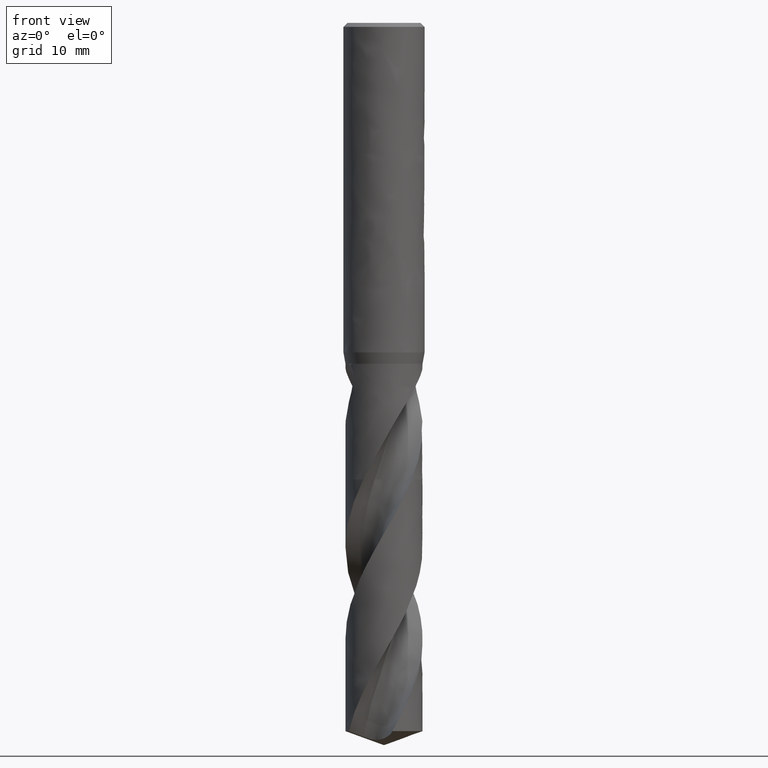
[diagram: clean part render]
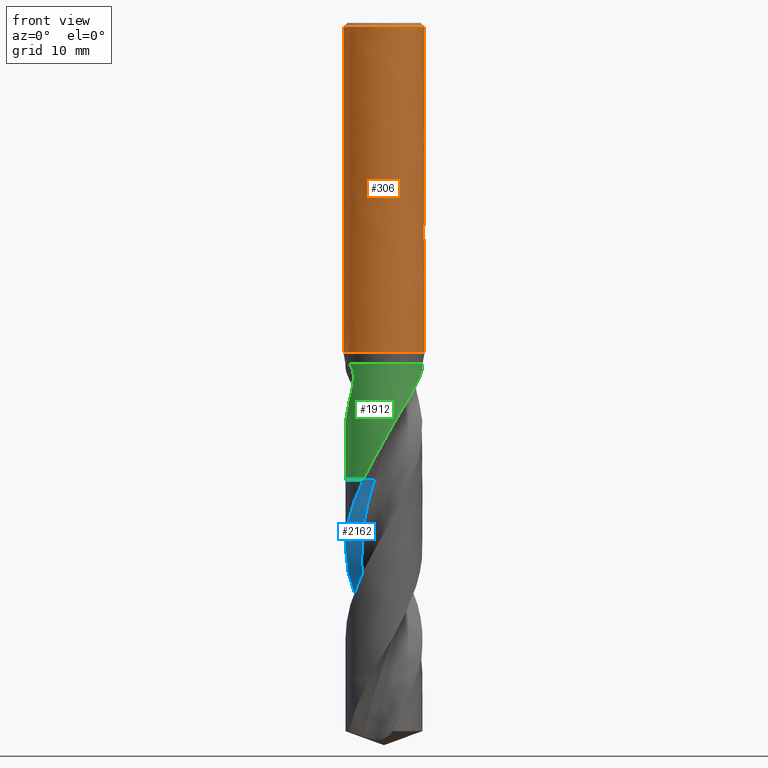
[diagram: same view with three faces highlighted in distinct colors, each labeled with its STEP entity id]
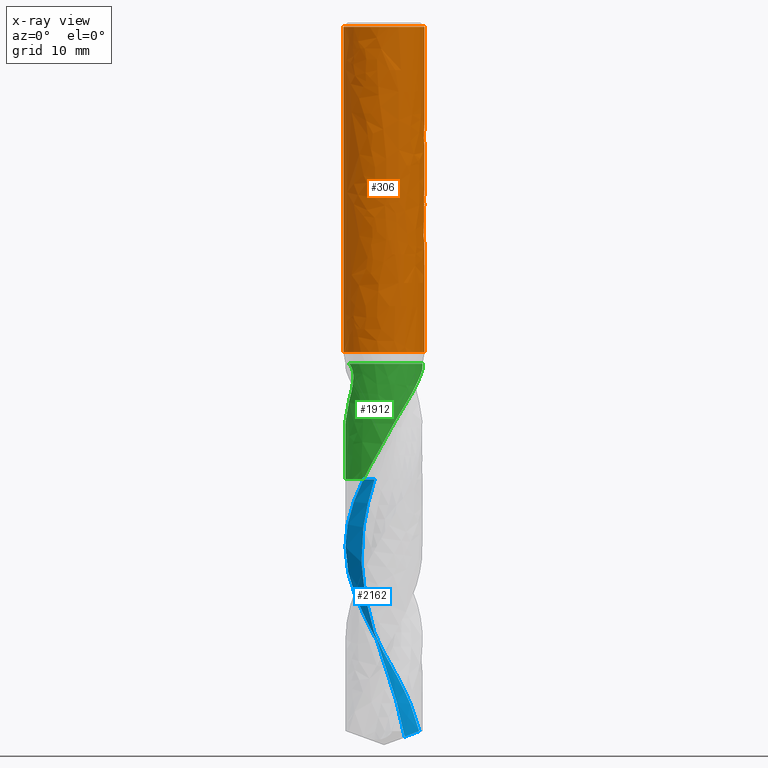
[diagram: x-ray of the same camera — body ghosted, the three highlighted faces saturated]
A machine part, front view with three faces highlighted in distinct colors.
The next image is the same camera in x-ray (body ghosted, the three faces saturated) — at least one of them is partly hidden behind the body in this view.
Their STEP definitions:

[orange] entity #306 — the highlighted face is a freeform B-spline surface patch.
#198 = VERTEX_POINT('', #199);
#199 = CARTESIAN_POINT('', (-5., 2.79268456077562E-15, -40.608));
#205 = EDGE_CURVE('', #198, #198, #206, .T.);
#206 = CIRCLE('', #207, 5.);
#207 = AXIS2_PLACEMENT_3D('', #208, #209, #210);
#208 = CARTESIAN_POINT('', (1.52255613135832E-31, 2.48652286098879E-15, -40.608));
#209 = DIRECTION('', (3.74939945665464E-33, 6.12323399573677E-17, -1.));
#210 = DIRECTION('', (-1., 6.12323399573677E-17, 0.));
#255 = VERTEX_POINT('', #256);
#256 = CARTESIAN_POINT('', (-5., 3.36777869765522E-16, -0.5));
#272 = EDGE_CURVE('', #255, #255, #273, .T.);
#273 = CIRCLE('', #274, 5.);
#274 = AXIS2_PLACEMENT_3D('', #275, #276, #277);
#275 = CARTESIAN_POINT('', (1.8746997283273E-33, 3.06161699786838E-17, -0.5));
#276 = DIRECTION('', (3.74939945665464E-33, 6.12323399573677E-17, -1.));
#277 = DIRECTION('', (-1., 6.12323399573677E-17, 0.));
#306 = ADVANCED_FACE('', (#307, #318), #504, .T.);
#307 = FACE_OUTER_BOUND('', #308, .T.);
#308 = EDGE_LOOP('', (#309, #315, #316, #317));
#309 = ORIENTED_EDGE('', *, *, #310, .T.);
#310 = EDGE_CURVE('', #198, #255, #311, .T.);
#311 = LINE('', #312, #313);
#312 = CARTESIAN_POINT('', (-5., 2.79268456077562E-15, -40.608));
#313 = VECTOR('', #314, 40.108);
#314 = DIRECTION('', (0., -2.4559066910101E-15, 40.108));
#315 = ORIENTED_EDGE('', *, *, #272, .T.);
#316 = ORIENTED_EDGE('', *, *, #310, .F.);
#317 = ORIENTED_EDGE('', *, *, #205, .F.);
#318 = FACE_BOUND('', #319, .T.);
#319 = EDGE_LOOP('', (#320, #330, #417, #425));
#320 = ORIENTED_EDGE('', *, *, #321, .F.);
#321 = EDGE_CURVE('', #322, #324, #326, .T.);
#322 = VERTEX_POINT('', #323);
#323 = CARTESIAN_POINT('', (3.57071421427142, 3.5, -16.5));
#324 = VERTEX_POINT('', #325);
#325 = CARTESIAN_POINT('', (3.57071421427142, 3.5, -23.5));
#326 = LINE('', #327, #328);
#327 = CARTESIAN_POINT('', (3.57071421427142, 3.5, -16.5));
#328 = VECTOR('', #329, 7.);
#329 = DIRECTION('', (-4.44089209850063E-16, 4.44089209850063E-16, -7.));
#330 = ORIENTED_EDGE('', *, *, #331, .F.);
#331 = EDGE_CURVE('', #332, #322, #334, .T.);
#332 = VERTEX_POINT('', #333);
#333 = CARTESIAN_POINT('', (-3.57071421427143, 3.5, -16.5));
#334 = B_SPLINE_CURVE_WITH_KNOTS('', 3, (#335, #336, #337, #338, #339, #340, #341, #342, #343, #344, #345, #346, #347, #348, #349, #350, #351, #352, #353, #354, #355, #356, #357, #358, #359, #360, #361, #362, #363, #364, #365, #366, #367, #368, #369, #370, #371, #372, #373, #374, #375, #376, #377, #378, #379, #380, #381, #382, #383, #384, #385, #386, #387, #388, #389, #390, #391, #392, #393, #394, #395, #396, #397, #398, #399, #400, #401, #402, #403, #404, #405, #406, #407, #408, #409, #410, #411, #412, #413, #414, #415, #416), .UNSPECIFIED., .F., .U., (4, 3, 3, 3, 3, 3, 3, 3, 3, 3, 3, 3, 3, 3, 3, 3, 3, 3, 3, 3, 3, 3, 3, 3, 3, 3, 3, 4), (0., 0.034113884401858, 0.477744785271101, 0.921646138215233, 1.36587692968725, 1.66193288302491, 1.95811394690938, 2.25443514488298, 2.55091138328179, 2.84755630975293, 3.14438084834245, 3.44139155508659, 3.73858907509582, 4.03596708411748, 4.33180862682757, 4.62765016953767, 4.92502817855933, 5.22222569856856, 5.5192364053127, 5.81606094390222, 6.11270587037336, 6.40918210877218, 6.70550330674577, 7.00168437063024, 7.2977403239679, 7.74197111543991, 8.18587246838405, 8.66361725365514), .UNSPECIFIED.);
#335 = CARTESIAN_POINT('', (-3.57071421427143, 3.5, -16.5));
#336 = CARTESIAN_POINT('', (-3.56427504914016, 3.50656926241779, -16.4933150699973));
#337 = CARTESIAN_POINT('', (-3.55781171392695, 3.51312691832153, -16.4866419508691));
#338 = CARTESIAN_POINT('', (-3.55132420209363, 3.51967277053197, -16.4799808432664));
#339 = CARTESIAN_POINT('', (-3.46695794567111, 3.60479770907222, -16.3933570764815));
#340 = CARTESIAN_POINT('', (-3.37844247985146, 3.68798545467209, -16.3087046115544));
#341 = CARTESIAN_POINT('', (-3.28578814351442, 3.7687658823467, -16.2265018511453));
#342 = CARTESIAN_POINT('', (-3.19307732202845, 3.84959555644267, -16.1442489772137));
#343 = CARTESIAN_POINT('', (-3.09609712074417, 3.92812245563972, -16.0643394240436));
#344 = CARTESIAN_POINT('', (-2.9949239430808, 4.00380201498053, -15.9873273449615));
#345 = CARTESIAN_POINT('', (-2.89367568039574, 4.07953773941852, -15.9102581118613));
#346 = CARTESIAN_POINT('', (-2.78806685747399, 4.15253987393854, -15.835970600071));
#347 = CARTESIAN_POINT('', (-2.67827641976913, 4.22218372638008, -15.7651005009515));
#348 = CARTESIAN_POINT('', (-2.60510699224168, 4.26859761196501, -15.7178693878437));
#349 = CARTESIAN_POINT('', (-2.53000964820203, 4.31356544734041, -15.6721097861197));
#350 = CARTESIAN_POINT('', (-2.45307301645999, 4.35688337873714, -15.6280291388821));
#351 = CARTESIAN_POINT('', (-2.37610387199879, 4.40021961589676, -15.5839298635649));
#352 = CARTESIAN_POINT('', (-2.29722271975626, 4.441944015062, -15.5414708065071));
#353 = CARTESIAN_POINT('', (-2.2165553058254, 4.48183919571167, -15.500873175734));
#354 = CARTESIAN_POINT('', (-2.13584972519196, 4.52175325222979, -15.4602563367377));
#355 = CARTESIAN_POINT('', (-2.05327275837509, 4.55987689392243, -15.4214614371042));
#356 = CARTESIAN_POINT('', (-1.96899537705871, 4.59598272463263, -15.3847198768441));
#357 = CARTESIAN_POINT('', (-1.88467390034474, 4.63210744654394, -15.3479590927581));
#358 = CARTESIAN_POINT('', (-1.79855309962361, 4.6662530102042, -15.3132123147402));
#359 = CARTESIAN_POINT('', (-1.71085713788038, 4.69818772014953, -15.2807153178074));
#360 = CARTESIAN_POINT('', (-1.62311127917806, 4.7301406002008, -15.2481998308405));
#361 = CARTESIAN_POINT('', (-1.5336765186139, 4.75991992907671, -15.2178961656186));
#362 = CARTESIAN_POINT('', (-1.44283688724849, 4.78729795571522, -15.1900360833063));
#363 = CARTESIAN_POINT('', (-1.35194225444139, 4.81469255915962, -15.1621591323137));
#364 = CARTESIAN_POINT('', (-1.25951372693075, 4.83972032116018, -15.1366906966724));
#365 = CARTESIAN_POINT('', (-1.16589904343752, 4.86216818101879, -15.1138475885239));
#366 = CARTESIAN_POINT('', (-1.07222564487661, 4.88463012016027, -15.090990153193));
#367 = CARTESIAN_POINT('', (-0.977222202676107, 4.90454207535022, -15.0707276003832));
#368 = CARTESIAN_POINT('', (-0.88129942868599, 4.92171832970943, -15.0532489169637));
#369 = CARTESIAN_POINT('', (-0.785316321360414, 4.9389053875585, -15.0357592398331));
#370 = CARTESIAN_POINT('', (-0.688256648043104, 4.9533803669116, -15.0210293938302));
#371 = CARTESIAN_POINT('', (-0.590587307962139, 4.96499815021859, -15.0092070516471));
#372 = CARTESIAN_POINT('', (-0.492858652975936, 4.97662298904286, -14.9973775297174));
#373 = CARTESIAN_POINT('', (-0.3943524604973, 4.98540636972409, -14.9884394966009));
#374 = CARTESIAN_POINT('', (-0.295578376007081, 4.9912556960786, -14.9824871788586));
#375 = CARTESIAN_POINT('', (-0.19731462869268, 4.9970748006527, -14.9765656150235));
#376 = CARTESIAN_POINT('', (-0.098613847570033, 5., -14.9735889105418));
#377 = CARTESIAN_POINT('', (1.53080849893419E-16, 5., -14.9735889105418));
#378 = CARTESIAN_POINT('', (0.0986138475700336, 5., -14.9735889105418));
#379 = CARTESIAN_POINT('', (0.197314628692682, 4.9970748006527, -14.9765656150235));
#380 = CARTESIAN_POINT('', (0.295578376007083, 4.9912556960786, -14.9824871788586));
#381 = CARTESIAN_POINT('', (0.394352460497301, 4.98540636972409, -14.9884394966009));
#382 = CARTESIAN_POINT('', (0.492858652975937, 4.97662298904286, -14.9973775297174));
#383 = CARTESIAN_POINT('', (0.590587307962141, 4.96499815021859, -15.0092070516471));
#384 = CARTESIAN_POINT('', (0.688256648043105, 4.9533803669116, -15.0210293938302));
#385 = CARTESIAN_POINT('', (0.785316321360415, 4.9389053875585, -15.0357592398331));
#386 = CARTESIAN_POINT('', (0.881299428685991, 4.92171832970943, -15.0532489169637));
#387 = CARTESIAN_POINT('', (0.977222202676109, 4.90454207535022, -15.0707276003832));
#388 = CARTESIAN_POINT('', (1.07222564487661, 4.88463012016027, -15.090990153193));
#389 = CARTESIAN_POINT('', (1.16589904343752, 4.86216818101879, -15.1138475885239));
#390 = CARTESIAN_POINT('', (1.25951372693075, 4.83972032116018, -15.1366906966724));
#391 = CARTESIAN_POINT('', (1.3519422544414, 4.81469255915962, -15.1621591323137));
#392 = CARTESIAN_POINT('', (1.44283688724849, 4.78729795571522, -15.1900360833063));
#393 = CARTESIAN_POINT('', (1.53367651861391, 4.75991992907671, -15.2178961656186));
#394 = CARTESIAN_POINT('', (1.62311127917807, 4.7301406002008, -15.2481998308405));
#395 = CARTESIAN_POINT('', (1.71085713788038, 4.69818772014953, -15.2807153178074));
#396 = CARTESIAN_POINT('', (1.79855309962361, 4.6662530102042, -15.3132123147402));
#397 = CARTESIAN_POINT('', (1.88467390034474, 4.63210744654394, -15.3479590927581));
#398 = CARTESIAN_POINT('', (1.96899537705871, 4.59598272463262, -15.3847198768441));
#399 = CARTESIAN_POINT('', (2.05327275837509, 4.55987689392243, -15.4214614371042));
#400 = CARTESIAN_POINT('', (2.13584972519196, 4.52175325222979, -15.4602563367377));
#401 = CARTESIAN_POINT('', (2.2165553058254, 4.48183919571166, -15.500873175734));
#402 = CARTESIAN_POINT('', (2.29722271975626, 4.441944015062, -15.5414708065071));
#403 = CARTESIAN_POINT('', (2.3761038719988, 4.40021961589676, -15.5839298635649));
#404 = CARTESIAN_POINT('', (2.45307301645999, 4.35688337873714, -15.6280291388821));
#405 = CARTESIAN_POINT('', (2.53000964820203, 4.31356544734041, -15.6721097861197));
#406 = CARTESIAN_POINT('', (2.60510699224168, 4.26859761196501, -15.7178693878437));
#407 = CARTESIAN_POINT('', (2.67827641976913, 4.22218372638007, -15.7651005009515));
#408 = CARTESIAN_POINT('', (2.78806685747399, 4.15253987393854, -15.835970600071));
#409 = CARTESIAN_POINT('', (2.89367568039574, 4.07953773941852, -15.9102581118613));
#410 = CARTESIAN_POINT('', (2.9949239430808, 4.00380201498053, -15.9873273449615));
#411 = CARTESIAN_POINT('', (3.09609712074417, 3.92812245563972, -16.0643394240436));
#412 = CARTESIAN_POINT('', (3.19307732202845, 3.84959555644267, -16.1442489772137));
#413 = CARTESIAN_POINT('', (3.28578814351442, 3.7687658823467, -16.2265018511453));
#414 = CARTESIAN_POINT('', (3.38556732014761, 3.68177368230406, -16.3150257570396));
#415 = CARTESIAN_POINT('', (3.48053751299862, 3.59199863686598, -16.4063815069818));
#416 = CARTESIAN_POINT('', (3.57071421427142, 3.5, -16.5));
#417 = ORIENTED_EDGE('', *, *, #418, .T.);
#418 = EDGE_CURVE('', #332, #419, #421, .T.);
#419 = VERTEX_POINT('', #420);
#420 = CARTESIAN_POINT('', (-3.57071421427142, 3.5, -23.5));
#421 = LINE('', #422, #423);
#422 = CARTESIAN_POINT('', (-3.57071421427143, 3.5, -16.5));
#423 = VECTOR('', #424, 6.99999999999999);
#424 = DIRECTION('', (1.33226762955019E-15, 8.88178419700125E-16, -6.99999999999999));
#425 = ORIENTED_EDGE('', *, *, #426, .T.);
#426 = EDGE_CURVE('', #419, #324, #427, .T.);
#427 = B_SPLINE_CURVE_WITH_KNOTS('', 3, (#428, #429, #430, #431, #432, #433, #434, #435, #436, #437, #438, #439, #440, #441, #442, #443, #444, #445, #446, #447, #448, #449, #450, #451, #452, #453, #454, #455, #456, #457, #458, #459, #460, #461, #462, #463, #464, #465, #466, #467, #468, #469, #470, #471, #472, #473, #474, #475, #476, #477, #478, #479, #480, #481, #482, #483, #484, #485, #486, #487, #488, #489, #490, #491, #492, #493, #494, #495, #496, #497, #498, #499, #500, #501, #502, #503), .UNSPECIFIED., .F., .U., (4, 3, 3, 3, 3, 3, 3, 3, 3, 3, 3, 3, 3, 3, 3, 3, 3, 3, 3, 3, 3, 3, 3, 3, 3, 4), (0., 0.443468649789139, 0.886759988140893, 1.32984152591458, 1.77267283862577, 2.21520517630396, 2.51020893408757, 2.80508585275751, 3.09982399025188, 3.39441275289526, 3.68884404188132, 3.98311346905247, 4.33160163163529, 4.62744317434539, 4.92482118336705, 5.22201870337627, 5.51902941012041, 5.81585394870994, 6.11249887518107, 6.40897511357989, 6.70529631155349, 7.00147737543795, 7.29753332877561, 7.74176412024763, 8.18566547319177, 8.66341025846286), .UNSPECIFIED.);
#428 = CARTESIAN_POINT('', (-3.57071421427142, 3.5, -23.5));
#429 = CARTESIAN_POINT('', (-3.48700730382719, 3.58539812998743, -23.5869017684212));
#430 = CARTESIAN_POINT('', (-3.39916377603426, 3.66888595387015, -23.6718595952275));
#431 = CARTESIAN_POINT('', (-3.30719006709263, 3.74999918134983, -23.7544010151786));
#432 = CARTESIAN_POINT('', (-3.21525313186779, 3.83107997744351, -23.8369094327116));
#433 = CARTESIAN_POINT('', (-3.11906671622979, 3.90989436363995, -23.9171115347777));
#434 = CARTESIAN_POINT('', (-3.018700637755, 3.98590597726775, -23.9944615147571));
#435 = CARTESIAN_POINT('', (-2.91838206045937, 4.06188161617848, -24.0717748865984));
#436 = CARTESIAN_POINT('', (-2.81373073052818, 4.13517346377029, -24.1463572125526));
#437 = CARTESIAN_POINT('', (-2.70491450565913, 4.20516795349214, -24.2175841227608));
#438 = CARTESIAN_POINT('', (-2.59615973346719, 4.27512291465305, -24.2887708084133));
#439 = CARTESIAN_POINT('', (-2.48304396851809, 4.34190978304565, -24.3567336194432));
#440 = CARTESIAN_POINT('', (-2.36587881626761, 4.40484022715245, -24.4207721046093));
#441 = CARTESIAN_POINT('', (-2.24879276740087, 4.46772818412912, -24.4847673545577));
#442 = CARTESIAN_POINT('', (-2.12740790123163, 4.52689698961025, -24.5449779684482));
#443 = CARTESIAN_POINT('', (-2.00223466237747, 4.58159975955716, -24.6006439115622));
#444 = CARTESIAN_POINT('', (-1.91879087151313, 4.61806607246025, -24.6377523011669));
#445 = CARTESIAN_POINT('', (-1.83355420105374, 4.65259752685798, -24.6728917644521));
#446 = CARTESIAN_POINT('', (-1.74673807718802, 4.68496596462576, -24.7058301260235));
#447 = CARTESIAN_POINT('', (-1.65995928057632, 4.71732048533706, -24.7387543254954));
#448 = CARTESIAN_POINT('', (-1.57149440783041, 4.74755320636072, -24.7695193659188));
#449 = CARTESIAN_POINT('', (-1.48161398798959, 4.77543924582795, -24.7978964058413));
#450 = CARTESIAN_POINT('', (-1.39177586956179, 4.80331216098096, -24.8262600903647));
#451 = CARTESIAN_POINT('', (-1.30040095201485, 4.82887767849311, -24.8522757499902));
#452 = CARTESIAN_POINT('', (-1.20782059197668, 4.85192430048093, -24.8757281629081));
#453 = CARTESIAN_POINT('', (-1.11528715215589, 4.87495924231852, -24.8991686900187));
#454 = CARTESIAN_POINT('', (-1.02141258642229, 4.89551097389568, -24.92008228401));
#455 = CARTESIAN_POINT('', (-0.926588590795426, 4.91339328605069, -24.9382794570624));
#456 = CARTESIAN_POINT('', (-0.831815283732713, 4.93126603914081, -24.9564669027396));
#457 = CARTESIAN_POINT('', (-0.735943631251923, 4.94649964746766, -24.9719687351947));
#458 = CARTESIAN_POINT('', (-0.639419612000055, 4.95894571051044, -24.9846339409604));
#459 = CARTESIAN_POINT('', (-0.542948656242195, 4.97138493140556, -24.9972921841061));
#460 = CARTESIAN_POINT('', (-0.445665514944973, 4.98105970853072, -25.007137308834));
#461 = CARTESIAN_POINT('', (-0.348058242038251, 4.987870834349, -25.0140683608211));
#462 = CARTESIAN_POINT('', (-0.23246696394669, 4.99593690068946, -25.0222764495614));
#463 = CARTESIAN_POINT('', (-0.116162720860943, 5., -25.0264110894582));
#464 = CARTESIAN_POINT('', (-1.13491833126403E-15, 5., -25.0264110894582));
#465 = CARTESIAN_POINT('', (0.0986138475700317, 5., -25.0264110894582));
#466 = CARTESIAN_POINT('', (0.197314628692679, 4.9970748006527, -25.0234343849765));
#467 = CARTESIAN_POINT('', (0.29557837600708, 4.9912556960786, -25.0175128211414));
#468 = CARTESIAN_POINT('', (0.394352460497298, 4.98540636972409, -25.0115605033991));
#469 = CARTESIAN_POINT('', (0.492858652975934, 4.97662298904286, -25.0026224702826));
#470 = CARTESIAN_POINT('', (0.590587307962138, 4.96499815021859, -24.9907929483529));
#471 = CARTESIAN_POINT('', (0.688256648043102, 4.9533803669116, -24.9789706061698));
#472 = CARTESIAN_POINT('', (0.785316321360412, 4.9389053875585, -24.964240760167));
#473 = CARTESIAN_POINT('', (0.881299428685988, 4.92171832970943, -24.9467510830363));
#474 = CARTESIAN_POINT('', (0.977222202676106, 4.90454207535022, -24.9292723996168));
#475 = CARTESIAN_POINT('', (1.07222564487661, 4.88463012016027, -24.909009846807));
#476 = CARTESIAN_POINT('', (1.16589904343752, 4.86216818101879, -24.8861524114761));
#477 = CARTESIAN_POINT('', (1.25951372693074, 4.83972032116019, -24.8633093033276));
#478 = CARTESIAN_POINT('', (1.35194225444139, 4.81469255915962, -24.8378408676863));
#479 = CARTESIAN_POINT('', (1.44283688724849, 4.78729795571523, -24.8099639166937));
#480 = CARTESIAN_POINT('', (1.5336765186139, 4.75991992907671, -24.7821038343814));
#481 = CARTESIAN_POINT('', (1.62311127917806, 4.7301406002008, -24.7518001691595));
#482 = CARTESIAN_POINT('', (1.71085713788038, 4.69818772014953, -24.7192846821926));
#483 = CARTESIAN_POINT('', (1.79855309962361, 4.6662530102042, -24.6867876852598));
#484 = CARTESIAN_POINT('', (1.88467390034474, 4.63210744654394, -24.6520409072419));
#485 = CARTESIAN_POINT('', (1.9689953770587, 4.59598272463263, -24.6152801231559));
#486 = CARTESIAN_POINT('', (2.05327275837509, 4.55987689392243, -24.5785385628958));
#487 = CARTESIAN_POINT('', (2.13584972519196, 4.52175325222979, -24.5397436632624));
#488 = CARTESIAN_POINT('', (2.21655530582539, 4.48183919571167, -24.499126824266));
#489 = CARTESIAN_POINT('', (2.29722271975626, 4.441944015062, -24.4585291934929));
#490 = CARTESIAN_POINT('', (2.37610387199879, 4.40021961589677, -24.4160701364351));
#491 = CARTESIAN_POINT('', (2.45307301645999, 4.35688337873714, -24.3719708611179));
#492 = CARTESIAN_POINT('', (2.53000964820203, 4.31356544734041, -24.3278902138803));
#493 = CARTESIAN_POINT('', (2.60510699224168, 4.26859761196501, -24.2821306121563));
#494 = CARTESIAN_POINT('', (2.67827641976912, 4.22218372638008, -24.2348994990485));
#495 = CARTESIAN_POINT('', (2.78806685747398, 4.15253987393855, -24.164029399929));
#496 = CARTESIAN_POINT('', (2.89367568039574, 4.07953773941852, -24.0897418881387));
#497 = CARTESIAN_POINT('', (2.99492394308079, 4.00380201498054, -24.0126726550385));
#498 = CARTESIAN_POINT('', (3.09609712074417, 3.92812245563972, -23.9356605759564));
#499 = CARTESIAN_POINT('', (3.19307732202845, 3.84959555644267, -23.8557510227863));
#500 = CARTESIAN_POINT('', (3.28578814351442, 3.7687658823467, -23.7734981488547));
#501 = CARTESIAN_POINT('', (3.38556732014761, 3.68177368230406, -23.6849742429604));
#502 = CARTESIAN_POINT('', (3.48053751299862, 3.59199863686598, -23.5936184930182));
#503 = CARTESIAN_POINT('', (3.57071421427142, 3.5, -23.5));
#504 = (
   BOUNDED_SURFACE ()
   B_SPLINE_SURFACE (1, 2, ((#505, #506, #507, #508, #509, #510, #511, #512, #513), (#514, #515, #516, #517, #518, #519, #520, #521, #522)), .UNSPECIFIED., .F., .T., .U.)
   B_SPLINE_SURFACE_WITH_KNOTS ((2, 2), (3, 2, 2, 2, 3), (0., 1.), (0., 7.85398163397448, 15.707963267949, 23.5619449019235, 31.4159265358979), .UNSPECIFIED.)
   GEOMETRIC_REPRESENTATION_ITEM ()
   RATIONAL_B_SPLINE_SURFACE (((1., 0.707106781186548, 1., 0.707106781186548, 1., 0.707106781186548, 1., 0.707106781186548, 1.), (1., 0.707106781186548, 1., 0.707106781186548, 1., 0.707106781186548, 1., 0.707106781186548, 1.)))
   REPRESENTATION_ITEM ('')
   SURFACE ()
);
#505 = CARTESIAN_POINT('', (-5., 2.79268456077562E-15, -40.608));
#506 = CARTESIAN_POINT('', (-5., 5., -40.608));
#507 = CARTESIAN_POINT('', (1.4791141972894E-31, 5., -40.608));
#508 = CARTESIAN_POINT('', (5., 5., -40.608));
#509 = CARTESIAN_POINT('', (5., 2.79268456077562E-15, -40.608));
#510 = CARTESIAN_POINT('', (5., -5., -40.608));
#511 = CARTESIAN_POINT('', (6.12323399573677E-16, -5., -40.608));
#512 = CARTESIAN_POINT('', (-5., -5., -40.608));
#513 = CARTESIAN_POINT('', (-5., 2.79268456077562E-15, -40.608));
#514 = CARTESIAN_POINT('', (-5., 3.36777869765522E-16, -0.5));
#515 = CARTESIAN_POINT('', (-5., 5., -0.5));
#516 = CARTESIAN_POINT('', (0., 5., -0.5));
#517 = CARTESIAN_POINT('', (5., 5., -0.5));
#518 = CARTESIAN_POINT('', (5., 3.36777869765522E-16, -0.5));
#519 = CARTESIAN_POINT('', (5., -5., -0.5));
#520 = CARTESIAN_POINT('', (6.12323399573677E-16, -5., -0.5));
#521 = CARTESIAN_POINT('', (-5., -5., -0.5));
#522 = CARTESIAN_POINT('', (-5., 3.36777869765522E-16, -0.5));

[blue] entity #2162 — the highlighted face is a freeform B-spline surface patch.
#1978 = VERTEX_POINT('', #1979);
#1979 = CARTESIAN_POINT('', (-2.53960129941274, -4.01409083604508, -56.25));
#1988 = EDGE_CURVE('', #1978, #1989, #1991, .T.);
#1989 = VERTEX_POINT('', #1990);
#1990 = CARTESIAN_POINT('', (-1.16955191055371, -2.59206651483527, -56.25));
#1991 = LINE('', #1992, #1993);
#1992 = CARTESIAN_POINT('', (-2.53960129941274, -4.01409083604508, -56.25));
#1993 = VECTOR('', #1994, 1.97463629512506);
#1994 = DIRECTION('', (1.37004938885903, 1.4220243212098, 0.));
#2162 = ADVANCED_FACE('', (#2163), #2386, .T.);
#2163 = FACE_OUTER_BOUND('', #2164, .T.);
#2164 = EDGE_LOOP('', (#2165, #2166, #2220, #2310, #2343));
#2165 = ORIENTED_EDGE('', *, *, #1988, .F.);
#2166 = ORIENTED_EDGE('', *, *, #2167, .T.);
#2167 = EDGE_CURVE('', #1978, #2168, #2170, .T.);
#2168 = VERTEX_POINT('', #2169);
#2169 = CARTESIAN_POINT('', (-4.75, 4.24570542958693E-15, -64.5876315937453));
#2170 = B_SPLINE_CURVE_WITH_KNOTS('', 3, (#2171, #2172, #2173, #2174, #2175, #2176, #2177, #2178, #2179, #2180, #2181, #2182, #2183, #2184, #2185, #2186, #2187, #2188, #2189, #2190, #2191, #2192, #2193, #2194, #2195, #2196, #2197, #2198, #2199, #2200, #2201, #2202, #2203, #2204, #2205, #2206, #2207, #2208, #2209, #2210, #2211, #2212, #2213, #2214, #2215, #2216, #2217, #2218, #2219), .UNSPECIFIED., .F., .U., (4, 3, 3, 3, 3, 3, 3, 3, 3, 3, 3, 3, 3, 3, 3, 3, 4), (13.5606600033024, 13.5832072501304, 14.2485077051814, 14.9137103321226, 15.5788103302599, 16.2438106827021, 16.9087118658809, 17.5735132473105, 18.238215356937, 18.9028176155445, 19.5673192460562, 20.2317198106113, 20.8960179345336, 21.5602121499833, 22.2243011390685, 22.8882826592257, 23.1717442119596), .UNSPECIFIED.);
#2171 = CARTESIAN_POINT('', (-2.53960129941274, -4.01409083604508, -56.25));
#2172 = CARTESIAN_POINT('', (-2.54276432947428, -4.01208967673343, -56.2565174446226));
#2173 = CARTESIAN_POINT('', (-2.54592502726763, -4.01008475779236, -56.2630349967183));
#2174 = CARTESIAN_POINT('', (-2.5490832895212, -4.00807614487097, -56.2695524606298));
#2175 = CARTESIAN_POINT('', (-2.64227397175836, -3.94880810647958, -56.4618629337992));
#2176 = CARTESIAN_POINT('', (-2.73339791245431, -3.88628730631038, -56.6542109665856));
#2177 = CARTESIAN_POINT('', (-2.82221681607962, -3.82067955251908, -56.8465319137611));
#2178 = CARTESIAN_POINT('', (-2.91102265946218, -3.75508144592175, -57.0388245813908));
#2179 = CARTESIAN_POINT('', (-2.99755014853531, -3.68637765585158, -57.2311484711251));
#2180 = CARTESIAN_POINT('', (-3.08156114880984, -3.61475875905236, -57.4234475737916));
#2181 = CARTESIAN_POINT('', (-3.16555918769766, -3.54315091176111, -57.6157170081643));
#2182 = CARTESIAN_POINT('', (-3.24706639607241, -3.46860772524191, -57.8080198444873));
#2183 = CARTESIAN_POINT('', (-3.32586089165337, -3.3913344466995, -58.0002986982756));
#2184 = CARTESIAN_POINT('', (-3.40464358219403, -3.31407274528771, -58.1925487447265));
#2185 = CARTESIAN_POINT('', (-3.48073812600151, -3.23405855321932, -58.3848325977136));
#2186 = CARTESIAN_POINT('', (-3.55393916902032, -3.15151017496424, -58.5770916306423));
#2187 = CARTESIAN_POINT('', (-3.62712929581407, -3.06897410687084, -58.7693219926287));
#2188 = CARTESIAN_POINT('', (-3.69744870496007, -2.98387981949059, -58.9615853173022));
#2189 = CARTESIAN_POINT('', (-3.76470650294034, -2.89646076215762, -59.1538242475211));
#2190 = CARTESIAN_POINT('', (-3.83195420551687, -2.80905482643589, -59.3460343226529));
#2191 = CARTESIAN_POINT('', (-3.89616147710761, -2.7192985191512, -59.5382776461963));
#2192 = CARTESIAN_POINT('', (-3.95715478065196, -2.6274371623244, -59.7304964593444));
#2193 = CARTESIAN_POINT('', (-4.01813897634037, -2.53558952274124, -59.9226865693209));
#2194 = CARTESIAN_POINT('', (-4.07592822872979, -2.44161027591039, -60.1149100553752));
#2195 = CARTESIAN_POINT('', (-4.13036684347974, -2.34575568597482, -60.3071089997165));
#2196 = CARTESIAN_POINT('', (-4.18479728050455, -2.24991549523903, -60.4992790720863));
#2197 = CARTESIAN_POINT('', (-4.23589439615623, -2.15217176762039, -60.6914821720735));
#2198 = CARTESIAN_POINT('', (-4.2835203624455, -2.05279158818296, -60.8836609914568));
#2199 = CARTESIAN_POINT('', (-4.33113911763936, -1.95342645599838, -61.075810712852));
#2200 = CARTESIAN_POINT('', (-4.37530211409593, -1.85239549107634, -61.2679936004641));
#2201 = CARTESIAN_POINT('', (-4.41589081512245, -1.74997380235168, -61.4601519877396));
#2202 = CARTESIAN_POINT('', (-4.45647334289715, -1.64756769123509, -61.6522811490954));
#2203 = CARTESIAN_POINT('', (-4.49349462750779, -1.54374110412137, -61.8444435688587));
#2204 = CARTESIAN_POINT('', (-4.52685571307423, -1.43877633877097, -62.0365815500145));
#2205 = CARTESIAN_POINT('', (-4.56021165486011, -1.33382775741791, -62.2286899063666));
#2206 = CARTESIAN_POINT('', (-4.58991850484936, -1.22770989365599, -62.420831196607));
#2207 = CARTESIAN_POINT('', (-4.61589698371174, -1.12071184332139, -62.61294829637));
#2208 = CARTESIAN_POINT('', (-4.64187139906113, -1.01373052945432, -62.805035345477));
#2209 = CARTESIAN_POINT('', (-4.66412642271989, -0.905837216486299, -62.9971554841733));
#2210 = CARTESIAN_POINT('', (-4.68260325582062, -0.797324744742139, -63.189251179905));
#2211 = CARTESIAN_POINT('', (-4.70107716169024, -0.688829464314382, -63.3813164424723));
#2212 = CARTESIAN_POINT('', (-4.7157795030061, -0.579683363349426, -63.5734148696684));
#2213 = CARTESIAN_POINT('', (-4.72667203986988, -0.470182334326081, -63.7654889528805));
#2214 = CARTESIAN_POINT('', (-4.73756281400416, -0.360699025756464, -63.9575319529152));
#2215 = CARTESIAN_POINT('', (-4.74464825997441, -0.250828114293933, -64.1496077756169));
#2216 = CARTESIAN_POINT('', (-4.74791071792107, -0.140868075341101, -64.341659497506));
#2217 = CARTESIAN_POINT('', (-4.7493034997489, -0.0939248360580815, -64.4236486457567));
#2218 = CARTESIAN_POINT('', (-4.75, -0.0469610975660935, -64.5056408424263));
#2219 = CARTESIAN_POINT('', (-4.75, 4.24428072016965E-15, -64.5876315937453));
#2220 = ORIENTED_EDGE('', *, *, #2221, .F.);
#2221 = EDGE_CURVE('', #2222, #2168, #2224, .T.);
#2222 = VERTEX_POINT('', #2223);
#2223 = CARTESIAN_POINT('', (4.34434243496843, 1.92072611471094, -87.2711413872355));
#2224 = B_SPLINE_CURVE_WITH_KNOTS('', 3, (#2225, #2226, #2227, #2228, #2229, #2230, #2231, #2232, #2233, #2234, #2235, #2236, #2237, #2238, #2239, #2240, #2241, #2242, #2243, #2244, #2245, #2246, #2247, #2248, #2249, #2250, #2251, #2252, #2253, #2254, #2255, #2256, #2257, #2258, #2259, #2260, #2261, #2262, #2263, #2264, #2265, #2266, #2267, #2268, #2269, #2270, #2271, #2272, #2273, #2274, #2275, #2276, #2277, #2278, #2279, #2280, #2281, #2282, #2283, #2284, #2285, #2286, #2287, #2288, #2289, #2290, #2291, #2292, #2293, #2294, #2295, #2296, #2297, #2298, #2299, #2300, #2301, #2302, #2303, #2304, #2305, #2306, #2307, #2308, #2309), .UNSPECIFIED., .F., .U., (4, 3, 3, 3, 3, 3, 3, 3, 3, 3, 3, 3, 3, 3, 3, 3, 3, 3, 3, 3, 3, 3, 3, 3, 3, 3, 3, 3, 4), (0., 0.998552159831574, 1.9967643399105, 2.9946425606502, 3.9921909999045, 4.98941205796551, 5.98630631202533, 6.98287259292542, 7.97910794089269, 8.97500755513941, 9.97056469055358, 10.9657705104362, 11.053329191126, 11.1117112191204, 12.1117415758042, 13.1113795363943, 14.1106412549104, 15.1095399413143, 16.1080862127289, 17.1062883632414, 18.1041525673784, 19.1016830280559, 20.0988820765574, 21.0957502295004, 22.0922862056059, 23.0884869031589, 24.0843473372233, 25.0798605337311, 26.1145709174074), .UNSPECIFIED.);
#2225 = CARTESIAN_POINT('', (4.34434243496843, 1.92072611471094, -87.2711413872355));
#2226 = CARTESIAN_POINT('', (4.27781410529156, 2.07120141857086, -86.9817959776542));
#2227 = CARTESIAN_POINT('', (4.20342842456414, 2.21828078697026, -86.6923649763104));
#2228 = CARTESIAN_POINT('', (4.12163068597098, 2.36107189396309, -86.4030391539372));
#2229 = CARTESIAN_POINT('', (4.03986079727494, 2.5038143844818, -86.1138118391086));
#2230 = CARTESIAN_POINT('', (3.95062988557853, 2.64236573586347, -85.8244993131762));
#2231 = CARTESIAN_POINT('', (3.85447368000594, 2.7758841204455, -85.5352917786127));
#2232 = CARTESIAN_POINT('', (3.75834964421, 2.90935783545488, -85.2461810005897));
#2233 = CARTESIAN_POINT('', (3.65524139865391, 3.03789018835303, -84.9569849532959));
#2234 = CARTESIAN_POINT('', (3.54576877339706, 3.16069989173321, -84.6678939193633));
#2235 = CARTESIAN_POINT('', (3.43633232694863, 3.28346900863143, -84.3788984250152));
#2236 = CARTESIAN_POINT('', (3.3204634352715, 3.400600324194, -84.0898176448567));
#2237 = CARTESIAN_POINT('', (3.19885933959265, 3.51138134150948, -83.8008418712261));
#2238 = CARTESIAN_POINT('', (3.07729515264644, 3.62212600207252, -83.5119609353295));
#2239 = CARTESIAN_POINT('', (2.94991928861926, 3.72659761825016, -83.2229947030538));
#2240 = CARTESIAN_POINT('', (2.81749881712219, 3.82416009281975, -82.9341334754723));
#2241 = CARTESIAN_POINT('', (2.68512174176038, 3.92169059473212, -82.6453669119616));
#2242 = CARTESIAN_POINT('', (2.54761605803888, 4.01238079957376, -82.3565150322913));
#2243 = CARTESIAN_POINT('', (2.40581031719949, 4.09567780930783, -82.067768158506));
#2244 = CARTESIAN_POINT('', (2.2640512297305, 4.17894741474764, -81.7791162809796));
#2245 = CARTESIAN_POINT('', (2.11790149269298, 4.25488355786413, -81.4903790696891));
#2246 = CARTESIAN_POINT('', (1.96824214883324, 4.32302241996921, -81.2017468664682));
#2247 = CARTESIAN_POINT('', (1.81863250282756, 4.39113865498575, -80.9132105102605));
#2248 = CARTESIAN_POINT('', (1.66541707039831, 4.45150763146678, -80.624588800556));
#2249 = CARTESIAN_POINT('', (1.5095198266473, 4.50375952876696, -80.3360721023846));
#2250 = CARTESIAN_POINT('', (1.35367512064429, 4.55599381705143, -80.0476526350379));
#2251 = CARTESIAN_POINT('', (1.19504788867904, 4.60015085259975, -79.7591477954206));
#2252 = CARTESIAN_POINT('', (1.0345950279684, 4.63595870647102, -79.4707479696627));
#2253 = CARTESIAN_POINT('', (0.874197345217096, 4.67175424641846, -79.1824473214064));
#2254 = CARTESIAN_POINT('', (0.711869869519744, 4.6992298668565, -78.8940612846018));
#2255 = CARTESIAN_POINT('', (0.548592064224543, 4.71821436001731, -78.6057802612678));
#2256 = CARTESIAN_POINT('', (0.385371876947343, 4.73719215386668, -78.3176009675054));
#2257 = CARTESIAN_POINT('', (0.221094853860025, 4.74769726844375, -78.0293362726109));
#2258 = CARTESIAN_POINT('', (0.0567524334764137, 4.74966095224644, -77.7411765870961));
#2259 = CARTESIAN_POINT('', (0.0422935092793621, 4.74983371808002, -77.7158241611079));
#2260 = CARTESIAN_POINT('', (0.0278336366858692, 4.74994046133322, -77.6904717401027));
#2261 = CARTESIAN_POINT('', (0.0133734885529995, 4.74998117362627, -77.6651194562028));
#2262 = CARTESIAN_POINT('', (0.00373180863677798, 4.7500083196067, -77.6482151614292));
#2263 = CARTESIAN_POINT('', (-0.00591002146786993, 4.75000610911033, -77.6313108796837));
#2264 = CARTESIAN_POINT('', (-0.0155518025620673, 4.74997454113568, -77.6144066502987));
#2265 = CARTESIAN_POINT('', (-0.18070663047611, 4.74943381081099, -77.3248527734975));
#2266 = CARTESIAN_POINT('', (-0.345906174537543, 4.7402675861475, -77.0352125227759));
#2267 = CARTESIAN_POINT('', (-0.510141133585553, 4.72252644501072, -76.7456784362146));
#2268 = CARTESIAN_POINT('', (-0.674311649433477, 4.7047922652171, -76.456257958249));
#2269 = CARTESIAN_POINT('', (-0.837628647057527, 4.67847797409876, -76.166751123886));
#2270 = CARTESIAN_POINT('', (-0.999094126029116, 4.64373889525828, -75.8773504190245));
#2271 = CARTESIAN_POINT('', (-1.16049883289212, 4.60901289145455, -75.5880586383193));
#2272 = CARTESIAN_POINT('', (-1.32016182865679, 4.5658451081439, -75.2986805141907));
#2273 = CARTESIAN_POINT('', (-1.47710719865446, 4.51449380591926, -75.0094084904528));
#2274 = CARTESIAN_POINT('', (-1.63399555034741, 4.46316115963966, -74.7202415593366));
#2275 = CARTESIAN_POINT('', (-1.78827359569753, 4.40361646369362, -74.4309882939955));
#2276 = CARTESIAN_POINT('', (-1.93899804623484, 4.33621800382517, -74.1418411045923));
#2277 = CARTESIAN_POINT('', (-2.08966932065291, 4.26884332237174, -73.8527959273402));
#2278 = CARTESIAN_POINT('', (-2.23689064439197, 4.19357518466096, -73.563664421956));
#2279 = CARTESIAN_POINT('', (-2.37976153755922, 4.11086791618921, -73.2746389719417));
#2280 = CARTESIAN_POINT('', (-2.52258319428945, 4.02818915045252, -72.9857131264239));
#2281 = CARTESIAN_POINT('', (-2.66115325473738, 3.93802089250388, -72.6967009563528));
#2282 = CARTESIAN_POINT('', (-2.79462376193925, 3.84090849008468, -72.4077948242844));
#2283 = CARTESIAN_POINT('', (-2.92804908202732, 3.74382896555941, -72.118986502845));
#2284 = CARTESIAN_POINT('', (-3.05646780207628, 3.63974486795515, -71.8300918584499));
#2285 = CARTESIAN_POINT('', (-3.17909362916044, 3.52928657054532, -71.5413032372743));
#2286 = CARTESIAN_POINT('', (-3.30167844308113, 3.41886521677385, -71.2526112037034));
#2287 = CARTESIAN_POINT('', (-3.4185564385743, 3.30199987207384, -70.9638328472814));
#2288 = CARTESIAN_POINT('', (-3.52901145533032, 3.17939902310915, -70.6751605013137));
#2289 = CARTESIAN_POINT('', (-3.63942977532478, 3.05683890614789, -70.3865840617209));
#2290 = CARTESIAN_POINT('', (-3.7435033982923, 2.92846493063469, -70.0979212983453));
#2291 = CARTESIAN_POINT('', (-3.84059400033652, 2.79505594301422, -69.8093645341466));
#2292 = CARTESIAN_POINT('', (-3.93765238529327, 2.66169122382895, -69.5209035202917));
#2293 = CARTESIAN_POINT('', (-4.02779741654032, 2.52320546006123, -69.2323561811234));
#2294 = CARTESIAN_POINT('', (-4.11047546143076, 2.38043934620809, -68.9439148308347));
#2295 = CARTESIAN_POINT('', (-4.19312595630729, 2.23772080494123, -68.6555695950976));
#2296 = CARTESIAN_POINT('', (-4.26836979655543, 2.09062916341999, -68.3671380323459));
#2297 = CARTESIAN_POINT('', (-4.33574397148301, 1.94005778618805, -68.0788124486592));
#2298 = CARTESIAN_POINT('', (-4.40309547877351, 1.78953706779293, -67.790583870386));
#2299 = CARTESIAN_POINT('', (-4.46262770387666, 1.63543817078888, -67.5022689636545));
#2300 = CARTESIAN_POINT('', (-4.51397319930699, 1.47869738484203, -67.2140600261566));
#2301 = CARTESIAN_POINT('', (-4.56530115710918, 1.32201013546344, -66.9259495296443));
#2302 = CARTESIAN_POINT('', (-4.60848232063833, 1.16257793905686, -66.637752703925));
#2303 = CARTESIAN_POINT('', (-4.64324870268004, 1.00136980434884, -66.3496618370892));
#2304 = CARTESIAN_POINT('', (-4.67800296234682, 0.840217879845452, -66.0616714220488));
#2305 = CARTESIAN_POINT('', (-4.70437154790352, 0.677183461256449, -65.7735946782134));
#2306 = CARTESIAN_POINT('', (-4.72218874172564, 0.513257720374041, -65.4856238818265));
#2307 = CARTESIAN_POINT('', (-4.74070746706288, 0.342877591976098, -65.1863145665283));
#2308 = CARTESIAN_POINT('', (-4.75, 0.171420550024657, -64.8869197368358));
#2309 = CARTESIAN_POINT('', (-4.75, 4.24428072016965E-15, -64.5876315937453));
#2310 = ORIENTED_EDGE('', *, *, #2311, .F.);
#2311 = EDGE_CURVE('', #2312, #2222, #2314, .T.);
#2312 = VERTEX_POINT('', #2313);
#2313 = CARTESIAN_POINT('', (2.53118809050763, 1.29681299132762, -87.9648493878194));
#2314 = B_SPLINE_CURVE_WITH_KNOTS('', 3, (#2315, #2316, #2317, #2318, #2319, #2320, #2321, #2322, #2323, #2324, #2325, #2326, #2327, #2328, #2329, #2330, #2331, #2332, #2333, #2334, #2335, #2336, #2337, #2338, #2339, #2340, #2341, #2342), .UNSPECIFIED., .F., .U., (4, 3, 3, 3, 3, 3, 3, 3, 3, 4), (0., 0.197209115444887, 0.394385263153779, 0.591537529628858, 0.788672781479943, 0.98579625056253, 1.28151995589326, 1.57723062731607, 1.87293875909307, 2.04138085848695), .UNSPECIFIED.);
#2315 = CARTESIAN_POINT('', (2.53118809050763, 1.29681299132762, -87.9648493878194));
#2316 = CARTESIAN_POINT('', (2.59131313364341, 1.31177955264069, -87.9428891553576));
#2317 = CARTESIAN_POINT('', (2.65128779242671, 1.32725236089639, -87.9208558177787));
#2318 = CARTESIAN_POINT('', (2.71110492038591, 1.34322788831357, -87.8987659036582));
#2319 = CARTESIAN_POINT('', (2.77091204862843, 1.35920074507849, -87.8766796823409));
#2320 = CARTESIAN_POINT('', (2.83056556645122, 1.37567718683101, -87.8545354089392));
#2321 = CARTESIAN_POINT('', (2.89005750479698, 1.39265330484375, -87.8323465242668));
#2322 = CARTESIAN_POINT('', (2.94954223770279, 1.40962736677289, -87.8101603270287));
#2323 = CARTESIAN_POINT('', (3.00886924172552, 1.42710207258737, -87.7879280602558));
#2324 = CARTESIAN_POINT('', (3.06802995494671, 1.44507317818013, -87.7656608433199));
#2325 = CARTESIAN_POINT('', (3.12718556248331, 1.46304273283153, -87.743395548088));
#2326 = CARTESIAN_POINT('', (3.1861786682103, 1.48150974483271, -87.7210938587975));
#2327 = CARTESIAN_POINT('', (3.24500028931431, 1.50046966750888, -87.6987651241275));
#2328 = CARTESIAN_POINT('', (3.30381839465166, 1.51942845695101, -87.6764377240453));
#2329 = CARTESIAN_POINT('', (3.36246874782563, 1.53888129548114, -87.6540818471863));
#2330 = CARTESIAN_POINT('', (3.42094207521645, 1.55882335849861, -87.6317054731845));
#2331 = CARTESIAN_POINT('', (3.50866348717976, 1.58874034806314, -87.5981365416794));
#2332 = CARTESIAN_POINT('', (3.59599680690844, 1.6197619960361, -87.5645177016677));
#2333 = CARTESIAN_POINT('', (3.68290996173771, 1.65187092880714, -87.5308715206397));
#2334 = CARTESIAN_POINT('', (3.7698192859033, 1.68397844638939, -87.4972268225542));
#2335 = CARTESIAN_POINT('', (3.85632060712163, 1.71717763589262, -87.4635499952461));
#2336 = CARTESIAN_POINT('', (3.94238143117089, 1.75144992895392, -87.429859736806));
#2337 = CARTESIAN_POINT('', (4.02844151610576, 1.78572192767521, -87.3961697677072));
#2338 = CARTESIAN_POINT('', (4.11407300648951, 1.82107175054488, -87.3624616455031));
#2339 = CARTESIAN_POINT('', (4.19924337231624, 1.85747972685979, -87.328751258694));
#2340 = CARTESIAN_POINT('', (4.24775835612744, 1.87821854093405, -87.3095490531564));
#2341 = CARTESIAN_POINT('', (4.29612670499878, 1.89930193007215, -87.2903448883999));
#2342 = CARTESIAN_POINT('', (4.34434243496843, 1.92072611471095, -87.2711413872355));
#2343 = ORIENTED_EDGE('', *, *, #2344, .T.);
#2344 = EDGE_CURVE('', #2312, #1989, #2345, .T.);
#2345 = (
   BOUNDED_CURVE ()
   B_SPLINE_CURVE (3, (#2346, #2347, #2348, #2349, #2350, #2351, #2352, #2353, #2354, #2355, #2356, #2357, #2358, #2359, #2360, #2361, #2362, #2363, #2364, #2365, #2366, #2367, #2368, #2369, #2370, #2371, #2372, #2373, #2374, #2375, #2376, #2377, #2378, #2379, #2380, #2381, #2382, #2383, #2384, #2385), .UNSPECIFIED., .F., .U.)
   B_SPLINE_CURVE_WITH_KNOTS ((4, 1, 1, 1, 1, 1, 1, 1, 1, 1, 1, 1, 1, 1, 1, 1, 1, 1, 1, 1, 1, 1, 1, 1, 1, 1, 1, 1, 1, 1, 1, 1, 1, 1, 1, 1, 1, 4), (1.08515061218057, 1.74333333333333, 2.615, 3.48666666666667, 4.35833333333333, 5.23, 6.10166666666667, 6.97333333333333, 7.845, 8.71666666666667, 9.58833333333333, 10.46, 11.3316666666667, 12.2033333333333, 13.075, 13.9466666666667, 14.8183333333333, 15.69, 16.5616666666667, 17.4333333333333, 18.305, 19.1766666666667, 20.0483333333333, 20.92, 21.7916666666667, 22.6633333333333, 23.535, 24.4066666666667, 25.2783333333333, 26.15, 27.0216666666667, 27.8933333333333, 28.765, 29.6366666666667, 30.5083333333333, 31.38, 32.2516666666667, 32.8), .UNSPECIFIED.)
   CURVE ()
   GEOMETRIC_REPRESENTATION_ITEM ()
   RATIONAL_B_SPLINE_CURVE ((1., 1., 1., 1., 1., 1., 1., 1., 1., 1., 1., 1., 1., 1., 1., 1., 1., 1., 1., 1., 1., 1., 1., 1., 1., 1., 1., 1., 1., 1., 1., 1., 1., 1., 1., 1., 1., 1., 1., 1.))
   REPRESENTATION_ITEM ('')
);
#2346 = CARTESIAN_POINT('', (2.53118809050763, 1.29681299132762, -87.9648493878194));
#2347 = CARTESIAN_POINT('', (2.49530997264791, 1.36276789290911, -87.7454551474352));
#2348 = CARTESIAN_POINT('', (2.4060124110714, 1.51266272163237, -87.2355053514954));
#2349 = CARTESIAN_POINT('', (2.24530587819239, 1.73389598375572, -86.435));
#2350 = CARTESIAN_POINT('', (2.04682833246795, 1.95489411108558, -85.5633333333333));
#2351 = CARTESIAN_POINT('', (1.82706662821195, 2.15374948629599, -84.6916666666667));
#2352 = CARTESIAN_POINT('', (1.5884345015676, 2.3284626657629, -83.82));
#2353 = CARTESIAN_POINT('', (1.33352691157159, 2.47729030089239, -82.9483333333333));
#2354 = CARTESIAN_POINT('', (1.06509507147196, 2.5987623250793, -82.0766666666667));
#2355 = CARTESIAN_POINT('', (0.786017882571186, 2.69169503063445, -81.205));
#2356 = CARTESIAN_POINT('', (0.499272887060797, 2.75520169995377, -80.3333333333333));
#2357 = CARTESIAN_POINT('', (0.207906251591754, 2.78870023639651, -79.4616666666667));
#2358 = CARTESIAN_POINT('', (-0.0849977337830501, 2.79191786759472, -78.59));
#2359 = CARTESIAN_POINT('', (-0.376347413279583, 2.76489285887434, -77.7183333333333));
#2360 = CARTESIAN_POINT('', (-0.663074481762286, 2.70797324373778, -76.8466666666667));
#2361 = CARTESIAN_POINT('', (-0.942164382434814, 2.62181259269597, -75.975));
#2362 = CARTESIAN_POINT('', (-1.21068610759208, 2.50736287037114, -75.1033333333333));
#2363 = CARTESIAN_POINT('', (-1.46582113185533, 2.36586445494148, -74.2316666666667));
#2364 = CARTESIAN_POINT('', (-1.70489121542304, 2.19883341847424, -73.36));
#2365 = CARTESIAN_POINT('', (-1.92538482549314, 2.00804618999256, -72.4883333333333));
#2366 = CARTESIAN_POINT('', (-2.12498193648519, 1.79552174543975, -71.6166666666667));
#2367 = CARTESIAN_POINT('', (-2.30157698406981, 1.56350148979517, -70.745));
#2368 = CARTESIAN_POINT('', (-2.45329976414931, 1.31442701633803, -69.8733333333333));
#2369 = CARTESIAN_POINT('', (-2.57853408571997, 1.05091594630576, -69.0016666666667));
#2370 = CARTESIAN_POINT('', (-2.67593400585586, 0.775736068829316, -68.13));
#2371 = CARTESIAN_POINT('', (-2.74443749574922, 0.491778015915418, -67.2583333333333));
#2372 = CARTESIAN_POINT('', (-2.78327740868145, 0.202026720334338, -66.3866666666667));
#2373 = CARTESIAN_POINT('', (-2.79198964383216, -0.0904680847614397, -65.515));
#2374 = CARTESIAN_POINT('', (-2.77041842379117, -0.382622056058964, -64.6433333333333));
#2375 = CARTESIAN_POINT('', (-2.71871862839874, -0.671346846726389, -63.7716666666667));
#2376 = CARTESIAN_POINT('', (-2.6373551527677, -0.953580843897304, -62.9));
#2377 = CARTESIAN_POINT('', (-2.52709928346527, -1.22631977635095, -62.0283333333333));
#2378 = CARTESIAN_POINT('', (-2.38902211140917, -1.48664682884849, -61.1566666666667));
#2379 = CARTESIAN_POINT('', (-2.2244850313126, -1.73176228450183, -60.285));
#2380 = CARTESIAN_POINT('', (-2.03512738380813, -1.95901129182008, -59.4133333333333));
#2381 = CARTESIAN_POINT('', (-1.8228513950433, -2.16591369297511, -58.5416666666667));
#2382 = CARTESIAN_POINT('', (-1.58980432068839, -2.35017995470064, -57.67));
#2383 = CARTESIAN_POINT('', (-1.36944889171789, -2.49003873487975, -56.9061111111111));
#2384 = CARTESIAN_POINT('', (-1.22590914909452, -2.56494541851126, -56.4327777777778));
#2385 = CARTESIAN_POINT('', (-1.16955191055371, -2.59206651483527, -56.25));
#2386 = B_SPLINE_SURFACE_WITH_KNOTS('', 3, 1, ((#2387, #2388), (#2389, #2390), (#2391, #2392), (#2393, #2394), (#2395, #2396), (#2397, #2398), (#2399, #2400), (#2401, #2402), (#2403, #2404), (#2405, #2406), (#2407, #2408), (#2409, #2410), (#2411, #2412), (#2413, #2414), (#2415, #2416), (#2417, #2418), (#2419, #2420), (#2421, #2422), (#2423, #2424), (#2425, #2426), (#2427, #2428), (#2429, #2430), (#2431, #2432), (#2433, #2434), (#2435, #2436), (#2437, #2438), (#2439, #2440), (#2441, #2442), (#2443, #2444), (#2445, #2446), (#2447, #2448), (#2449, #2450), (#2451, #2452), (#2453, #2454), (#2455, #2456), (#2457, #2458), (#2459, #2460), (#2461, #2462), (#2463, #2464), (#2465, #2466)), .UNSPECIFIED., .F., .F., .U., (4, 1, 1, 1, 1, 1, 1, 1, 1, 1, 1, 1, 1, 1, 1, 1, 1, 1, 1, 1, 1, 1, 1, 1, 1, 1, 1, 1, 1, 1, 1, 1, 1, 1, 1, 1, 1, 4), (2, 2), (1.08515061218056, 1.74333333333333, 2.615, 3.48666666666667, 4.35833333333333, 5.23, 6.10166666666667, 6.97333333333333, 7.845, 8.71666666666667, 9.58833333333333, 10.46, 11.3316666666667, 12.2033333333333, 13.075, 13.9466666666667, 14.8183333333333, 15.69, 16.5616666666667, 17.4333333333333, 18.305, 19.1766666666667, 20.0483333333333, 20.92, 21.7916666666667, 22.6633333333333, 23.535, 24.4066666666667, 25.2783333333333, 26.15, 27.0216666666667, 27.8933333333333, 28.765, 29.6366666666667, 30.5083333333333, 31.38, 32.2516666666667, 32.8), (0., 0.194392659555938), .UNSPECIFIED.);
#2387 = CARTESIAN_POINT('', (2.53118809050763, 1.29681299132762, -87.9648493878194));
#2388 = CARTESIAN_POINT('', (4.62806342132759, 1.5720955681056, -87.9648493878194));
#2389 = CARTESIAN_POINT('', (2.49530997264791, 1.36276789290911, -87.7454551474352));
#2390 = CARTESIAN_POINT('', (4.58355060272842, 1.69321040740854, -87.7454551474352));
#2391 = CARTESIAN_POINT('', (2.40601241107141, 1.51266272163237, -87.2355053514954));
#2392 = CARTESIAN_POINT('', (4.46919615722818, 1.97040624529797, -87.2355053514954));
#2393 = CARTESIAN_POINT('', (2.24530587819239, 1.73389598375572, -86.435));
#2394 = CARTESIAN_POINT('', (4.25126141432814, 2.38675465880224, -86.435));
#2395 = CARTESIAN_POINT('', (2.04682833246795, 1.95489411108558, -85.5633333333333));
#2396 = CARTESIAN_POINT('', (3.96904534320931, 2.81214744201802, -85.5633333333333));
#2397 = CARTESIAN_POINT('', (1.82706662821195, 2.15374948629599, -84.6916666666667));
#2398 = CARTESIAN_POINT('', (3.64510302540989, 3.20521246027552, -84.6916666666667));
#2399 = CARTESIAN_POINT('', (1.5884345015676, 2.3284626657629, -83.82));
#2400 = CARTESIAN_POINT('', (3.2830386312986, 3.56194650930821, -83.82));
#2401 = CARTESIAN_POINT('', (1.33352691157159, 2.47729030089239, -82.9483333333333));
#2402 = CARTESIAN_POINT('', (2.88682850022507, 3.87873651396854, -82.9483333333333));
#2403 = CARTESIAN_POINT('', (1.06509507147196, 2.5987623250793, -82.0766666666667));
#2404 = CARTESIAN_POINT('', (2.46078298333613, 4.1523949945418, -82.0766666666667));
#2405 = CARTESIAN_POINT('', (0.786017882571186, 2.69169503063445, -81.205));
#2406 = CARTESIAN_POINT('', (2.0095011418974, 4.38018944422526, -81.205));
#2407 = CARTESIAN_POINT('', (0.499272887060797, 2.75520169995377, -80.3333333333333));
#2408 = CARTESIAN_POINT('', (1.53782401621858, 4.55986766832354, -80.3333333333333));
#2409 = CARTESIAN_POINT('', (0.207906251591753, 2.78870023639651, -79.4616666666667));
#2410 = CARTESIAN_POINT('', (1.050785496341, 4.68967826436353, -79.4616666666667));
#2411 = CARTESIAN_POINT('', (-0.08499773378305, 2.79191786759472, -78.59));
#2412 = CARTESIAN_POINT('', (0.553561636704008, 4.76838624560206, -78.59));
#2413 = CARTESIAN_POINT('', (-0.376347413279584, 2.76489285887434, -77.7183333333333));
#2414 = CARTESIAN_POINT('', (0.0514187869039478, 4.795283644951, -77.7183333333333));
#2415 = CARTESIAN_POINT('', (-0.663074481762286, 2.70797324373778, -76.8466666666667));
#2416 = CARTESIAN_POINT('', (-0.450338953185496, 4.77019503664959, -76.8466666666667));
#2417 = CARTESIAN_POINT('', (-0.942164382434814, 2.62181259269597, -75.975));
#2418 = CARTESIAN_POINT('', (-0.946422476946222, 4.69347794252039, -75.975));
#2419 = CARTESIAN_POINT('', (-1.21068610759208, 2.50736287037114, -75.1033333333334));
#2420 = CARTESIAN_POINT('', (-1.43161012760779, 4.56601813811759, -75.1033333333334));
#2421 = CARTESIAN_POINT('', (-1.46582113185533, 2.36586445494147, -74.2316666666667));
#2422 = CARTESIAN_POINT('', (-1.90079938931056, 4.38921991705717, -74.2316666666667));
#2423 = CARTESIAN_POINT('', (-1.70489121542304, 2.19883341847424, -73.36));
#2424 = CARTESIAN_POINT('', (-2.34905734172293, 4.16499141546218, -73.36));
#2425 = CARTESIAN_POINT('', (-1.92538482549315, 2.00804618999256, -72.4883333333333));
#2426 = CARTESIAN_POINT('', (-2.77166941953277, 3.89572514072758, -72.4883333333333));
#2427 = CARTESIAN_POINT('', (-2.12498193648519, 1.79552174543975, -71.6166666666667));
#2428 = CARTESIAN_POINT('', (-3.16418603376003, 3.58427388987638, -71.6166666666667));
#2429 = CARTESIAN_POINT('', (-2.30157698406982, 1.56350148979517, -70.745));
#2430 = CARTESIAN_POINT('', (-3.52246663101331, 3.23392228223412, -70.745));
#2431 = CARTESIAN_POINT('', (-2.45329976414931, 1.31442701633803, -69.8733333333333));
#2432 = CARTESIAN_POINT('', (-3.84272078931311, 2.84835416875132, -69.8733333333333));
#2433 = CARTESIAN_POINT('', (-2.57853408571997, 1.05091594630576, -69.0016666666667));
#2434 = CARTESIAN_POINT('', (-4.12154597478532, 2.43161621578238, -69.0016666666667));
#2435 = CARTESIAN_POINT('', (-2.67593400585586, 0.775736068829316, -68.13));
#2436 = CARTESIAN_POINT('', (-4.35596161219927, 1.98807799424322, -68.13));
#2437 = CARTESIAN_POINT('', (-2.74443749574922, 0.491778015915418, -67.2583333333333));
#2438 = CARTESIAN_POINT('', (-4.54343915379194, 1.52238893555798, -67.2583333333333));
#2439 = CARTESIAN_POINT('', (-2.78327740868145, 0.202026720334338, -66.3866666666667));
#2440 = CARTESIAN_POINT('', (-4.68192786484976, 1.03943254354592, -66.3866666666667));
#2441 = CARTESIAN_POINT('', (-2.79198964383216, -0.0904680847614398, -65.515));
#2442 = CARTESIAN_POINT('', (-4.76987608094104, 0.544278275805106, -65.515));
#2443 = CARTESIAN_POINT('', (-2.77041842379117, -0.382622056058965, -64.6433333333333));
#2444 = CARTESIAN_POINT('', (-4.80624773002693, 0.0421315304689737, -64.6433333333333));
#2445 = CARTESIAN_POINT('', (-2.71871862839874, -0.67134684672639, -63.7716666666667));
#2446 = CARTESIAN_POINT('', (-4.79053395353022, -0.46171781110957, -63.7716666666667));
#2447 = CARTESIAN_POINT('', (-2.63735515276771, -0.953580843897304, -62.9));
#2448 = CARTESIAN_POINT('', (-4.72275970029805, -0.961947808214067, -62.9));
#2449 = CARTESIAN_POINT('', (-2.52709928346527, -1.22631977635095, -62.0283333333333));
#2450 = CARTESIAN_POINT('', (-4.60348521804772, -1.4532574094849, -62.0283333333333));
#2451 = CARTESIAN_POINT('', (-2.38902211140917, -1.48664682884849, -61.1566666666667));
#2452 = CARTESIAN_POINT('', (-4.4338023829454, -1.93041930373343, -61.1566666666667));
#2453 = CARTESIAN_POINT('', (-2.2244850313126, -1.73176228450183, -60.285));
#2454 = CARTESIAN_POINT('', (-4.21532595739694, -2.38833269673617, -60.285));
#2455 = CARTESIAN_POINT('', (-2.03512738380813, -1.95901129182008, -59.4133333333333));
#2456 = CARTESIAN_POINT('', (-3.95017952059825, -2.82207361383193, -59.4133333333333));
#2457 = CARTESIAN_POINT('', (-1.8228513950433, -2.16591369297511, -58.5416666666667));
#2458 = CARTESIAN_POINT('', (-3.64097731932442, -3.22694938296985, -58.5416666666667));
#2459 = CARTESIAN_POINT('', (-1.58980432068839, -2.35017995470064, -57.67));
#2460 = CARTESIAN_POINT('', (-3.29079789048132, -3.59853018688955, -57.67));
#2461 = CARTESIAN_POINT('', (-1.36944889171789, -2.49003873487975, -56.9061111111111));
#2462 = CARTESIAN_POINT('', (-2.95109468949153, -3.89143099438994, -56.9061111111111));
#2463 = CARTESIAN_POINT('', (-1.22590914909452, -2.56494541851126, -56.4327777777778));
#2464 = CARTESIAN_POINT('', (-2.72576171673639, -4.05468611450359, -56.4327777777778));
#2465 = CARTESIAN_POINT('', (-1.16955191055371, -2.59206651483527, -56.25));
#2466 = CARTESIAN_POINT('', (-2.63671807717085, -4.11489188824991, -56.25));

[green] entity #1912 — the highlighted face is a freeform B-spline surface patch.
#138 = VERTEX_POINT('', #139);
#139 = CARTESIAN_POINT('', (-4.39608544267453, -1.79914779290227, -42.));
#149 = EDGE_CURVE('', #150, #138, #152, .T.);
#150 = VERTEX_POINT('', #151);
#151 = CARTESIAN_POINT('', (4.56500864349693, 1.31270563524284, -42.));
#152 = CIRCLE('', #153, 4.75);
#153 = AXIS2_PLACEMENT_3D('', #154, #155, #156);
#154 = CARTESIAN_POINT('', (1.57474777179495E-31, 2.57175827820944E-15, -42.));
#155 = DIRECTION('', (3.74939945665464E-33, 6.12323399573677E-17, -1.));
#156 = DIRECTION('', (-1., 6.12323399573677E-17, 0.));
#570 = VERTEX_POINT('', #571);
#571 = CARTESIAN_POINT('', (-2.53960129941274, -4.01409083604508, -56.25));
#580 = VERTEX_POINT('', #581);
#581 = CARTESIAN_POINT('', (3.87500785970032, -2.74714653545469, -44.7950544550316));
#601 = EDGE_CURVE('', #580, #570, #602, .T.);
#602 = B_SPLINE_CURVE_WITH_KNOTS('', 3, (#603, #604, #605, #606, #607, #608, #609, #610, #611, #612, #613, #614, #615, #616, #617, #618, #619, #620, #621, #622, #623, #624, #625, #626, #627, #628, #629, #630, #631, #632, #633, #634, #635, #636, #637, #638, #639, #640, #641, #642, #643, #644, #645, #646, #647, #648, #649, #650, #651, #652, #653, #654, #655, #656, #657, #658, #659, #660, #661, #662, #663, #664, #665, #666, #667, #668, #669, #670, #671, #672, #673, #674, #675, #676, #677, #678, #679, #680, #681, #682, #683, #684, #685, #686, #687, #688, #689, #690, #691, #692, #693, #694, #695, #696, #697, #698, #699, #700, #701, #702, #703, #704, #705, #706, #707, #708, #709, #710, #711, #712, #713, #714, #715, #716, #717, #718, #719, #720), .UNSPECIFIED., .F., .U., (4, 3, 3, 3, 3, 3, 3, 3, 3, 3, 3, 3, 3, 3, 3, 3, 3, 3, 3, 3, 3, 3, 3, 3, 3, 3, 3, 3, 3, 3, 3, 3, 3, 3, 3, 3, 3, 3, 3, 4), (0., 0.441919368770059, 0.883887978597237, 1.32592005331939, 1.62094505582511, 1.91599609785765, 2.35824513799557, 2.65337048426481, 2.94852789174461, 3.2437170731266, 3.53894623674245, 3.83421578993219, 4.12952300043825, 4.79360702586817, 5.08898214664812, 5.38438216924593, 5.67984415056531, 5.97535053454865, 6.17236830462915, 6.36937092926657, 6.56633726911254, 6.76328588636899, 6.9602357106037, 7.15720546595671, 7.35419748122556, 7.79715150308278, 8.09250341991718, 8.15088010544344, 8.20927032151311, 8.87520298871134, 9.31897739998244, 9.76272464354005, 10.2064323456573, 10.6501352559083, 11.0938444833769, 11.2909557164393, 11.9565997734931, 12.2522847985764, 12.9178042994204, 13.5606600033024), .UNSPECIFIED.);
#603 = CARTESIAN_POINT('', (3.87500785970032, -2.74714653545469, -44.7950544550316));
#604 = CARTESIAN_POINT('', (3.82002151844926, -2.82470792570968, -44.9075707875013));
#605 = CARTESIAN_POINT('', (3.7630682393594, -2.90010547270845, -45.0206549034294));
#606 = CARTESIAN_POINT('', (3.70436830101531, -2.97323989789472, -45.1342544859374));
#607 = CARTESIAN_POINT('', (3.64566182200516, -3.04638247211599, -45.247866726328));
#608 = CARTESIAN_POINT('', (3.58518512047453, -3.11729002021129, -45.3620384752409));
#609 = CARTESIAN_POINT('', (3.52316923430061, -3.18587170904255, -45.4767320226931));
#610 = CARTESIAN_POINT('', (3.46114444289763, -3.25446324592541, -45.5914420396723));
#611 = CARTESIAN_POINT('', (3.39755741040932, -3.32075406025826, -45.7067162374187));
#612 = CARTESIAN_POINT('', (3.3326243680225, -3.38468829017719, -45.8225021429814));
#613 = CARTESIAN_POINT('', (3.28928617586775, -3.42735984597751, -45.899781008096));
#614 = CARTESIAN_POINT('', (3.24533995505456, -3.4689903649967, -45.9773031682189));
#615 = CARTESIAN_POINT('', (3.20085140279195, -3.50956554252015, -46.0550560283179));
#616 = CARTESIAN_POINT('', (3.15635892387621, -3.55014430129406, -46.1328157510478));
#617 = CARTESIAN_POINT('', (3.11131722922133, -3.58967368536869, -46.2108179215131));
#618 = CARTESIAN_POINT('', (3.06579419719084, -3.62814083801483, -46.2890529682938));
#619 = CARTESIAN_POINT('', (2.9975601822185, -3.68579886632547, -46.4063186932529));
#620 = CARTESIAN_POINT('', (2.92822909728173, -3.74108306370201, -46.5241419941013));
#621 = CARTESIAN_POINT('', (2.85801270984806, -3.7939772469464, -46.642478140704));
#622 = CARTESIAN_POINT('', (2.81115532006452, -3.82927503784893, -46.7214472125903));
#623 = CARTESIAN_POINT('', (2.76389535318668, -3.86351511856403, -46.8006583576583));
#624 = CARTESIAN_POINT('', (2.71629630592508, -3.89669531506092, -46.8801005919844));
#625 = CARTESIAN_POINT('', (2.66869208769766, -3.92987911611866, -46.9595514565899));
#626 = CARTESIAN_POINT('', (2.62074228874861, -3.96200724942417, -47.0392440260743));
#627 = CARTESIAN_POINT('', (2.57251231010029, -3.99307906437907, -47.1191701019647));
#628 = CARTESIAN_POINT('', (2.5242771394609, -4.02415422423668, -47.1991047819533));
#629 = CARTESIAN_POINT('', (2.47575724428141, -4.05417581642904, -47.279284751517));
#630 = CARTESIAN_POINT('', (2.42701283918621, -4.08314935783952, -47.3596984765999));
#631 = CARTESIAN_POINT('', (2.37826183184971, -4.11212682360422, -47.4401230934111));
#632 = CARTESIAN_POINT('', (2.32927917992059, -4.14006020178889, -47.5207906568271));
#633 = CARTESIAN_POINT('', (2.28012182561183, -4.16695865834647, -47.6016887456789));
#634 = CARTESIAN_POINT('', (2.23095774620664, -4.19386079481555, -47.6825979019989));
#635 = CARTESIAN_POINT('', (2.18161295948381, -4.21973095535435, -47.7637472470857));
#636 = CARTESIAN_POINT('', (2.13214583658185, -4.24457938217047, -47.8451271135352));
#637 = CARTESIAN_POINT('', (2.0826724048713, -4.26943097804029, -47.9265173587973));
#638 = CARTESIAN_POINT('', (2.03307081572433, -4.29326343976738, -48.0081474809567));
#639 = CARTESIAN_POINT('', (1.98340242787633, -4.31608790562638, -48.0900113270253));
#640 = CARTESIAN_POINT('', (1.87170863319318, -4.36741534575208, -48.2741059596666));
#641 = CARTESIAN_POINT('', (1.75963855268986, -4.41365855367287, -48.4594582709068));
#642 = CARTESIAN_POINT('', (1.64783716626583, -4.45501208454848, -48.6459822080455));
#643 = CARTESIAN_POINT('', (1.59810950116053, -4.4734055463836, -48.7289453999774));
#644 = CARTESIAN_POINT('', (1.54842579164219, -4.49083603758736, -48.8121541642686));
#645 = CARTESIAN_POINT('', (1.49883898213842, -4.50732533833784, -48.8956005699111));
#646 = CARTESIAN_POINT('', (1.44924799218202, -4.52381602923101, -48.9790540105644));
#647 = CARTESIAN_POINT('', (1.39975106833242, -4.53936650635805, -49.0627545358585));
#648 = CARTESIAN_POINT('', (1.35038460932605, -4.55400498538324, -49.1466851833293));
#649 = CARTESIAN_POINT('', (1.3010077959444, -4.56864653475838, -49.2306334348462));
#650 = CARTESIAN_POINT('', (1.25175561745423, -4.58237729941851, -49.3148189998397));
#651 = CARTESIAN_POINT('', (1.20267571102205, -4.59522264249707, -49.3992341261286));
#652 = CARTESIAN_POINT('', (1.15358842875565, -4.60806991600149, -49.4836619385048));
#653 = CARTESIAN_POINT('', (1.10466869265312, -4.62003252190295, -49.5683268445344));
#654 = CARTESIAN_POINT('', (1.05598407572301, -4.63113351479091, -49.6532341189619));
#655 = CARTESIAN_POINT('', (1.02352543799242, -4.63853468438658, -49.7098428515578));
#656 = CARTESIAN_POINT('', (0.991170133447247, -4.64555318491162, -49.7665623774444));
#657 = CARTESIAN_POINT('', (0.958944322225092, -4.65219580272286, -49.8233977695916));
#658 = CARTESIAN_POINT('', (0.926720988313431, -4.65883790989292, -49.8802287926039));
#659 = CARTESIAN_POINT('', (0.894628111035233, -4.66510414399208, -49.9371791512655));
#660 = CARTESIAN_POINT('', (0.862670389416347, -4.67100629406814, -49.9942413512413));
#661 = CARTESIAN_POINT('', (0.8307185539082, -4.6769073570608, -50.0512930412555));
#662 = CARTESIAN_POINT('', (0.798900746527828, -4.68244481300761, -50.1084586698478));
#663 = CARTESIAN_POINT('', (0.767200400556932, -4.68763304295305, -50.1657195465929));
#664 = CARTESIAN_POINT('', (0.735502906912071, -4.69282080607319, -50.2229752711327));
#665 = CARTESIAN_POINT('', (0.703921835782159, -4.6976597181134, -50.2803281144411));
#666 = CARTESIAN_POINT('', (0.672418148888563, -4.70216480283765, -50.3377483539553));
#667 = CARTESIAN_POINT('', (0.640914268928035, -4.70666991517082, -50.3951689453633));
#668 = CARTESIAN_POINT('', (0.609486829232246, -4.71084147247727, -50.4526585306954));
#669 = CARTESIAN_POINT('', (0.578074416882263, -4.71469298772955, -50.5101767103255));
#670 = CARTESIAN_POINT('', (0.546658825628676, -4.71854489275119, -50.5677007107358));
#671 = CARTESIAN_POINT('', (0.515257350217558, -4.72207693515178, -50.6252546914214));
#672 = CARTESIAN_POINT('', (0.48378772103341, -4.7252988731907, -50.6827878881308));
#673 = CARTESIAN_POINT('', (0.452314535408344, -4.72852117534678, -50.740327586773));
#674 = CARTESIAN_POINT('', (0.420763666554389, -4.73143363673095, -50.7978430406509));
#675 = CARTESIAN_POINT('', (0.389147727424566, -4.73403253540153, -50.8553359939847));
#676 = CARTESIAN_POINT('', (0.318056483582855, -4.73987638961544, -50.9846139998619));
#677 = CARTESIAN_POINT('', (0.246636983955777, -4.74413394207812, -51.1137934795464));
#678 = CARTESIAN_POINT('', (0.175015137948862, -4.74677466302001, -51.2428835882073));
#679 = CARTESIAN_POINT('', (0.127259279639533, -4.74853543717156, -51.3289580093797));
#680 = CARTESIAN_POINT('', (0.0794090762336166, -4.74957795109174, -51.4149978679296));
#681 = CARTESIAN_POINT('', (0.0314881625818635, -4.74989562997096, -51.5009979459734));
#682 = CARTESIAN_POINT('', (0.0220165324791625, -4.74995841960926, -51.5179959718031));
#683 = CARTESIAN_POINT('', (0.0125420447809011, -4.74999289628025, -51.5349925338599));
#684 = CARTESIAN_POINT('', (0.00306483196451335, -4.74999901124253, -51.5519875625827));
#685 = CARTESIAN_POINT('', (-0.00641457747949023, -4.75000512762213, -51.5689865304119));
#686 = CARTESIAN_POINT('', (-0.0158967405701204, -4.74998286912729, -51.5859839969245));
#687 = CARTESIAN_POINT('', (-0.0253815070313617, -4.7499321867897, -51.6029799018592));
#688 = CARTESIAN_POINT('', (-0.133554010105328, -4.74935416145389, -51.796815942663));
#689 = CARTESIAN_POINT('', (-0.242086294019883, -4.74507721495851, -51.9904768411935));
#690 = CARTESIAN_POINT('', (-0.350708929586716, -4.73703528028958, -52.1838947451693));
#691 = CARTESIAN_POINT('', (-0.423094545315997, -4.73167617268159, -52.3127875307226));
#692 = CARTESIAN_POINT('', (-0.495531454171268, -4.72464447402543, -52.441593034544));
#693 = CARTESIAN_POINT('', (-0.567924976725479, -4.71592633750903, -52.5702978112791));
#694 = CARTESIAN_POINT('', (-0.640314067373681, -4.70720873471389, -52.698994708753));
#695 = CARTESIAN_POINT('', (-0.712667000982352, -4.69680382160137, -52.8276088802328));
#696 = CARTESIAN_POINT('', (-0.78487528884677, -4.68470605064583, -52.956133879997));
#697 = CARTESIAN_POINT('', (-0.857077142373292, -4.67260935769877, -53.0846474271522));
#698 = CARTESIAN_POINT('', (-0.929143615659576, -4.65881854596651, -53.213088948155));
#699 = CARTESIAN_POINT('', (-1.00096554429149, -4.64333586757853, -53.341451975047));
#700 = CARTESIAN_POINT('', (-1.0727866972752, -4.6278533563973, -53.4698136156695));
#701 = CARTESIAN_POINT('', (-1.14437987306021, -4.61067514831322, -53.5981097789823));
#702 = CARTESIAN_POINT('', (-1.21561848271048, -4.59181573067699, -53.7263442509983));
#703 = CARTESIAN_POINT('', (-1.28685810662004, -4.57295604452991, -53.8545805487517));
#704 = CARTESIAN_POINT('', (-1.35775220235587, -4.55241159601345, -53.982772515672));
#705 = CARTESIAN_POINT('', (-1.42811147146333, -4.53023152003016, -54.110963534538));
#706 = CARTESIAN_POINT('', (-1.45936753158692, -4.52037835075661, -54.167910490409));
#707 = CARTESIAN_POINT('', (-1.49051663917599, -4.51020322689187, -54.224861451886));
#708 = CARTESIAN_POINT('', (-1.52154727834062, -4.49971042176874, -54.2818174216858));
#709 = CARTESIAN_POINT('', (-1.62633765596447, -4.46427624958324, -54.4741575649742));
#710 = CARTESIAN_POINT('', (-1.72980745479725, -4.42520901278042, -54.66658647725));
#711 = CARTESIAN_POINT('', (-1.83175382535873, -4.38259944819096, -54.8589993070095));
#712 = CARTESIAN_POINT('', (-1.87703931212478, -4.36367189968976, -54.9444708015581));
#713 = CARTESIAN_POINT('', (-1.92203008484393, -4.34404301938202, -55.0299465220261));
#714 = CARTESIAN_POINT('', (-1.96671062955282, -4.32371938261538, -55.1154158293672));
#715 = CARTESIAN_POINT('', (-2.06727633728092, -4.2779755151589, -55.3077877316748));
#716 = CARTESIAN_POINT('', (-2.16628440109863, -4.22870233737876, -55.5001733071012));
#717 = CARTESIAN_POINT('', (-2.26343762006472, -4.17604479622474, -55.6925306495198));
#718 = CARTESIAN_POINT('', (-2.35728235471735, -4.1251804704757, -55.8783373983837));
#719 = CARTESIAN_POINT('', (-2.44941858521597, -4.07114687874897, -56.0641779135023));
#720 = CARTESIAN_POINT('', (-2.53960129941274, -4.01409083604508, -56.25));
#1003 = EDGE_CURVE('', #580, #150, #1004, .T.);
#1004 = B_SPLINE_CURVE_WITH_KNOTS('', 3, (#1005, #1006, #1007, #1008, #1009, #1010, #1011, #1012, #1013, #1014, #1015, #1016, #1017, #1018, #1019, #1020, #1021, #1022, #1023, #1024, #1025, #1026, #1027, #1028, #1029, #1030, #1031, #1032, #1033, #1034, #1035, #1036, #1037, #1038, #1039, #1040, #1041, #1042, #1043, #1044, #1045, #1046, #1047, #1048, #1049, #1050, #1051, #1052, #1053, #1054, #1055, #1056), .UNSPECIFIED., .F., .U., (4, 3, 3, 3, 3, 3, 3, 3, 3, 3, 3, 3, 3, 3, 3, 3, 3, 4), (0., 0.447608386823781, 0.895413014539901, 1.34334579643214, 1.79133747577082, 2.23929126298599, 2.68712654037773, 2.98455014501961, 3.28187179456946, 3.57905654988702, 3.77672349548958, 3.8156791737483, 4.11527248823786, 4.4147666497061, 4.61344367589257, 4.8120294206637, 5.01048869752931, 5.19736239166717), .UNSPECIFIED.);
#1005 = CARTESIAN_POINT('', (3.87500785970032, -2.74714653545469, -44.7950544550316));
#1006 = CARTESIAN_POINT('', (3.93070206376572, -2.66858666407257, -44.6810896514334));
#1007 = CARTESIAN_POINT('', (3.98538738670226, -2.5863818179108, -44.569057650386));
#1008 = CARTESIAN_POINT('', (4.03851214774536, -2.50058385832453, -44.4591579501491));
#1009 = CARTESIAN_POINT('', (4.09166019979644, -2.41474828311565, -44.3492100675817));
#1010 = CARTESIAN_POINT('', (4.14329090766168, -2.32524311954407, -44.241293823364));
#1011 = CARTESIAN_POINT('', (4.19283510170446, -2.23218140165959, -44.1356250588667));
#1012 = CARTESIAN_POINT('', (4.24239347446487, -2.13909305107182, -44.0299260537408));
#1013 = CARTESIAN_POINT('', (4.28991314767672, -2.04235342328914, -43.926370215454));
#1014 = CARTESIAN_POINT('', (4.33481858196257, -1.94212457413833, -43.8252196703249));
#1015 = CARTESIAN_POINT('', (4.37972992074016, -1.84188254617249, -43.7240558251895));
#1016 = CARTESIAN_POINT('', (4.42207720618412, -1.73803493974884, -43.6251884512738));
#1017 = CARTESIAN_POINT('', (4.46127134649211, -1.63081512531877, -43.5289213912627));
#1018 = CARTESIAN_POINT('', (4.50046217167334, -1.5236043797769, -43.4326624737317));
#1019 = CARTESIAN_POINT('', (4.53654896153295, -1.41288793527056, -43.3388782691262));
#1020 = CARTESIAN_POINT('', (4.56893905825532, -1.29895953822626, -43.2479549722024));
#1021 = CARTESIAN_POINT('', (4.60132058591376, -1.18506128186746, -43.1570557297774));
#1022 = CARTESIAN_POINT('', (4.63005409179271, -1.0677866780102, -43.0688821808349));
#1023 = CARTESIAN_POINT('', (4.65454079832934, -0.947496678985009, -42.983942403663));
#1024 = CARTESIAN_POINT('', (4.67080330575473, -0.867607740085843, -42.9275308256134));
#1025 = CARTESIAN_POINT('', (4.6852080963727, -0.786317405093094, -42.8724957285953));
#1026 = CARTESIAN_POINT('', (4.69757729895206, -0.7037524567419, -42.8190260177717));
#1027 = CARTESIAN_POINT('', (4.70994226144029, -0.621215811177629, -42.7655746360559));
#1028 = CARTESIAN_POINT('', (4.7202832642687, -0.537335892668309, -42.7136421561136));
#1029 = CARTESIAN_POINT('', (4.72842045673127, -0.452260969314475, -42.6634596503886));
#1030 = CARTESIAN_POINT('', (4.73655390262941, -0.367225216556984, -42.6133002499289));
#1031 = CARTESIAN_POINT('', (4.74249309501578, -0.280913861821531, -42.5648404761098));
#1032 = CARTESIAN_POINT('', (4.74605695037109, -0.193503033139811, -42.5183663584972));
#1033 = CARTESIAN_POINT('', (4.74842738287157, -0.135363336506851, -42.4874549583878));
#1034 = CARTESIAN_POINT('', (4.74974861250065, -0.0767030157603927, -42.4574043484409));
#1035 = CARTESIAN_POINT('', (4.74996745685828, -0.0175829118793268, -42.4283161488442));
#1036 = CARTESIAN_POINT('', (4.75001058612482, -0.00593167834408605, -42.4225835234871));
#1037 = CARTESIAN_POINT('', (4.75001091381057, 0.00573810576389696, -42.4168879625012));
#1038 = CARTESIAN_POINT('', (4.74996803534609, 0.0174259344189309, -42.4112303199463));
#1039 = CARTESIAN_POINT('', (4.74963827337389, 0.107312582077635, -42.3677195415188));
#1040 = CARTESIAN_POINT('', (4.74675041679401, 0.198340396693789, -42.3264110301016));
#1041 = CARTESIAN_POINT('', (4.74112400496018, 0.290246739155371, -42.2877526065065));
#1042 = CARTESIAN_POINT('', (4.73549945523644, 0.382122664411052, -42.2491069772539));
#1043 = CARTESIAN_POINT('', (4.72712806572825, 0.475020667806663, -42.2130476430566));
#1044 = CARTESIAN_POINT('', (4.71584500659937, 0.568599924139837, -42.1801550721274));
#1045 = CARTESIAN_POINT('', (4.70836010397882, 0.630678090438207, -42.1583349533518));
#1046 = CARTESIAN_POINT('', (4.69958690246081, 0.693118348816145, -42.1378881098226));
#1047 = CARTESIAN_POINT('', (4.68948584307597, 0.755792648541964, -42.1190270166737));
#1048 = CARTESIAN_POINT('', (4.67938942458502, 0.818438152795586, -42.1001745891834));
#1049 = CARTESIAN_POINT('', (4.66795578827625, 0.881380371965404, -42.0828873311061));
#1050 = CARTESIAN_POINT('', (4.65515827022519, 0.944458299319802, -42.067420931906));
#1051 = CARTESIAN_POINT('', (4.6423689021816, 1.00749605594912, -42.0519643823711));
#1052 = CARTESIAN_POINT('', (4.62820125960088, 1.07074550683035, -42.0383076144152));
#1053 = CARTESIAN_POINT('', (4.61265064996442, 1.1339991099568, -42.0267580754292));
#1054 = CARTESIAN_POINT('', (4.59800784810221, 1.19356011748671, -42.0158827711854));
#1055 = CARTESIAN_POINT('', (4.5821186290837, 1.25320468545126, -42.0068616961364));
#1056 = CARTESIAN_POINT('', (4.56500864349693, 1.31270563524285, -42.));
#1215 = VERTEX_POINT('', #1216);
#1216 = CARTESIAN_POINT('', (-4.75, 3.34091351580154E-15, -49.8112582848803));
#1244 = EDGE_CURVE('', #1245, #1215, #1247, .T.);
#1245 = VERTEX_POINT('', #1246);
#1246 = CARTESIAN_POINT('', (-4.72714110071509, -0.465442814887183, -49.0599959628534));
#1247 = B_SPLINE_CURVE_WITH_KNOTS('', 3, (#1248, #1249, #1250, #1251, #1252, #1253, #1254, #1255, #1256, #1257), .UNSPECIFIED., .F., .U., (4, 3, 3, 4), (0., 0.442868415698527, 0.738288535712451, 0.884217186035363), .UNSPECIFIED.);
#1248 = CARTESIAN_POINT('', (-4.72714110071509, -0.465442814887183, -49.0599959628534));
#1249 = CARTESIAN_POINT('', (-4.73506745257939, -0.384941016432011, -49.1834833144989));
#1250 = CARTESIAN_POINT('', (-4.74079623718657, -0.3056445141944, -49.3079260808318));
#1251 = CARTESIAN_POINT('', (-4.74453253965987, -0.227839812387322, -49.4333252875492));
#1252 = CARTESIAN_POINT('', (-4.74702488024218, -0.175939352723155, -49.5169741714726));
#1253 = CARTESIAN_POINT('', (-4.74863132982367, -0.124694671129763, -49.6010651018089));
#1254 = CARTESIAN_POINT('', (-4.74942010381161, -0.0742204655815728, -49.685615309771));
#1255 = CARTESIAN_POINT('', (-4.74980973442804, -0.0492877267707516, -49.7273805684536));
#1256 = CARTESIAN_POINT('', (-4.75, -0.0245420188901234, -49.7692604347181));
#1257 = CARTESIAN_POINT('', (-4.75, 3.12930663318772E-15, -49.8112582848803));
#1399 = EDGE_CURVE('', #1245, #138, #1400, .T.);
#1400 = B_SPLINE_CURVE_WITH_KNOTS('', 3, (#1401, #1402, #1403, #1404, #1405, #1406, #1407, #1408, #1409, #1410, #1411, #1412, #1413, #1414, #1415, #1416, #1417, #1418, #1419, #1420, #1421, #1422, #1423, #1424, #1425, #1426, #1427, #1428, #1429, #1430, #1431, #1432, #1433, #1434, #1435, #1436, #1437, #1438, #1439, #1440, #1441, #1442, #1443, #1444, #1445, #1446, #1447, #1448, #1449, #1450, #1451, #1452, #1453, #1454, #1455, #1456, #1457, #1458, #1459, #1460, #1461, #1462, #1463, #1464, #1465, #1466, #1467, #1468, #1469, #1470, #1471, #1472, #1473, #1474, #1475, #1476, #1477, #1478, #1479, #1480, #1481, #1482, #1483, #1484, #1485, #1486, #1487, #1488, #1489, #1490, #1491, #1492, #1493, #1494, #1495, #1496, #1497, #1498, #1499, #1500, #1501, #1502, #1503, #1504, #1505, #1506, #1507, #1508, #1509, #1510, #1511, #1512), .UNSPECIFIED., .F., .U., (4, 3, 3, 3, 3, 3, 3, 3, 3, 3, 3, 3, 3, 3, 3, 3, 3, 3, 3, 3, 3, 3, 3, 3, 3, 3, 3, 3, 3, 3, 3, 3, 3, 3, 3, 3, 3, 4), (0., 0.1971569067799, 0.64106747357205, 0.936740763835317, 1.23230727511578, 1.52775546626626, 1.82308299817254, 2.11828673024825, 2.41336377633027, 2.70830508596418, 3.00311521075356, 3.29780236241583, 3.59237395170869, 3.88684547516373, 4.18124166662492, 4.47559048549575, 4.76992646831688, 5.06430611356636, 5.35880189623525, 5.65351071121346, 5.94857579829911, 6.24419895591848, 6.44155912262, 6.52923729005297, 6.58768495575584, 6.78576858381343, 6.98437772290975, 7.11662645890286, 7.24903446190725, 7.38157943530974, 7.51421729625976, 7.64688347187081, 7.77950173454705, 7.91199866354939, 8.04431763659673, 8.17642634256459, 8.3083162254305, 8.39029444069001), .UNSPECIFIED.);
#1401 = CARTESIAN_POINT('', (-4.72714110071509, -0.465442814887183, -49.0599959628534));
#1402 = CARTESIAN_POINT('', (-4.72361243404974, -0.50128074103192, -49.0050216557819));
#1403 = CARTESIAN_POINT('', (-4.71965513747226, -0.537289482821629, -48.9501842395775));
#1404 = CARTESIAN_POINT('', (-4.71526153014322, -0.573418435657659, -48.8954633307913));
#1405 = CARTESIAN_POINT('', (-4.70536906047755, -0.654764933698195, -48.7722559320173));
#1406 = CARTESIAN_POINT('', (-4.69325576178812, -0.73673754403728, -48.6496200695217));
#1407 = CARTESIAN_POINT('', (-4.67890476833139, -0.818749148937419, -48.5272954094539));
#1408 = CARTESIAN_POINT('', (-4.66934607392013, -0.873374208295262, -48.4458192351336));
#1409 = CARTESIAN_POINT('', (-4.65879550685226, -0.928023210035232, -48.3644696175979));
#1410 = CARTESIAN_POINT('', (-4.64727386385163, -0.982520042727624, -48.2831616862527));
#1411 = CARTESIAN_POINT('', (-4.63575638175887, -1.03699719452035, -48.2018831183248));
#1412 = CARTESIAN_POINT('', (-4.62326728295609, -1.09132781789153, -48.1206381311501));
#1413 = CARTESIAN_POINT('', (-4.60984910229666, -1.14533455988119, -48.0393371944208));
#1414 = CARTESIAN_POINT('', (-4.59643629315537, -1.19931968208482, -47.958068803792));
#1415 = CARTESIAN_POINT('', (-4.58209424810204, -1.25298474034297, -47.8767349980378));
#1416 = CARTESIAN_POINT('', (-4.56688692612226, -1.30615611778048, -47.7952464088771));
#1417 = CARTESIAN_POINT('', (-4.55168581472027, -1.35930578035085, -47.7137910991607));
#1418 = CARTESIAN_POINT('', (-4.53561861331157, -1.41196785548161, -47.6321726280535));
#1419 = CARTESIAN_POINT('', (-4.51876720063266, -1.46398189418009, -47.550309952986));
#1420 = CARTESIAN_POINT('', (-4.50192285198203, -1.5159741288526, -47.4684815943442));
#1421 = CARTESIAN_POINT('', (-4.48429308117857, -1.56732489282661, -47.3864000585446));
#1422 = CARTESIAN_POINT('', (-4.46597690342745, -1.6178845132001, -47.3039922479561));
#1423 = CARTESIAN_POINT('', (-4.44766858602134, -1.66842243603033, -47.2216198024875));
#1424 = CARTESIAN_POINT('', (-4.42867147803351, -1.71817797542461, -47.1389122776171));
#1425 = CARTESIAN_POINT('', (-4.40910476950842, -1.76700173500145, -47.0557986185652));
#1426 = CARTESIAN_POINT('', (-4.38954706173601, -1.81580303548229, -46.9727231920801));
#1427 = CARTESIAN_POINT('', (-4.36941795531276, -1.86367928939336, -46.8892295646015));
#1428 = CARTESIAN_POINT('', (-4.34885510018463, -1.91048667035339, -46.8052543574016));
#1429 = CARTESIAN_POINT('', (-4.32830139106239, -1.95727323219182, -46.7213165009361));
#1430 = CARTESIAN_POINT('', (-4.30731094182382, -2.00299968806142, -46.6368839714662));
#1431 = CARTESIAN_POINT('', (-4.28603873622616, -2.04752825415641, -46.5519033787058));
#1432 = CARTESIAN_POINT('', (-4.26477540382999, -2.09203824620473, -46.466958233606));
#1433 = CARTESIAN_POINT('', (-4.24322635878877, -2.13536015999673, -46.3814495942587));
#1434 = CARTESIAN_POINT('', (-4.22156552986135, -2.17735722312311, -46.2953333846829));
#1435 = CARTESIAN_POINT('', (-4.19991319528702, -2.21933781698677, -46.2092509458134));
#1436 = CARTESIAN_POINT('', (-4.17814484346158, -2.26000297845483, -46.1225414103999));
#1437 = CARTESIAN_POINT('', (-4.15645555976502, -2.29921229548265, -46.0351710231607));
#1438 = CARTESIAN_POINT('', (-4.13477364390848, -2.33840829312293, -45.9478303156031));
#1439 = CARTESIAN_POINT('', (-4.11316479904935, -2.37616032686866, -45.8598058920417));
#1440 = CARTESIAN_POINT('', (-4.09184344678405, -2.41232609881229, -45.7710800909454));
#1441 = CARTESIAN_POINT('', (-4.070527548968, -2.44848261879268, -45.6823769877705));
#1442 = CARTESIAN_POINT('', (-4.04949183467215, -2.48306594131709, -45.5929441423506));
#1443 = CARTESIAN_POINT('', (-4.02897385908064, -2.51592321878965, -45.5027814341816));
#1444 = CARTESIAN_POINT('', (-4.00845918512714, -2.54877520905269, -45.4126332344918));
#1445 = CARTESIAN_POINT('', (-3.98845362214486, -2.57991531981988, -45.3217192988268));
#1446 = CARTESIAN_POINT('', (-3.96922541175126, -2.60916646282064, -45.2300598771771));
#1447 = CARTESIAN_POINT('', (-3.94999803986711, -2.63841633022898, -45.1384044526383));
#1448 = CARTESIAN_POINT('', (-3.93153808060629, -2.66579273812135, -45.0459577036442));
#1449 = CARTESIAN_POINT('', (-3.91414409600837, -2.69109197087034, -44.9527731472924));
#1450 = CARTESIAN_POINT('', (-3.89674753114963, -2.71639495656155, -44.8595747677445));
#1451 = CARTESIAN_POINT('', (-3.88040568906369, -2.73963744164828, -44.7655787582293));
#1452 = CARTESIAN_POINT('', (-3.86545674526598, -2.76056953371541, -44.6708834779606));
#1453 = CARTESIAN_POINT('', (-3.85050190387385, -2.78150988382346, -44.5761508389083));
#1454 = CARTESIAN_POINT('', (-3.83692858865032, -2.80015630121394, -44.480638906524));
#1455 = CARTESIAN_POINT('', (-3.82512584199598, -2.81618754576014, -44.3845134009844));
#1456 = CARTESIAN_POINT('', (-3.81331455747276, -2.83223038698531, -44.2883183601929));
#1457 = CARTESIAN_POINT('', (-3.80326300423892, -2.84567403763379, -44.1914008142213));
#1458 = CARTESIAN_POINT('', (-3.79541842950169, -2.85609855309632, -44.0940347154287));
#1459 = CARTESIAN_POINT('', (-3.78756437149477, -2.86653567070682, -43.9965509112148));
#1460 = CARTESIAN_POINT('', (-3.78191077792277, -2.8739649131433, -43.898465494347));
#1461 = CARTESIAN_POINT('', (-3.77897664683073, -2.87781783695702, -43.8002297697452));
#1462 = CARTESIAN_POINT('', (-3.77603696627798, -2.88167804798751, -43.7018082472784));
#1463 = CARTESIAN_POINT('', (-3.77582443236387, -2.88195697939058, -43.6030147745895));
#1464 = CARTESIAN_POINT('', (-3.77892416485406, -2.87788675181669, -43.5046066248171));
#1465 = CARTESIAN_POINT('', (-3.7809935687733, -2.8751694383323, -43.4389086294358));
#1466 = CARTESIAN_POINT('', (-3.78454359686499, -2.87050594427543, -43.3732783606041));
#1467 = CARTESIAN_POINT('', (-3.78975107274872, -2.86361429082199, -43.3080611839566));
#1468 = CARTESIAN_POINT('', (-3.79206451801008, -2.86055264188097, -43.2790881514081));
#1469 = CARTESIAN_POINT('', (-3.79470611070706, -2.85704921564764, -43.2501820014568));
#1470 = CARTESIAN_POINT('', (-3.79769050621028, -2.85307672855821, -43.2213813926425));
#1471 = CARTESIAN_POINT('', (-3.79967995188192, -2.85042860526584, -43.2021824471661));
#1472 = CARTESIAN_POINT('', (-3.8018221484427, -2.84757143725581, -43.1830262135647));
#1473 = CARTESIAN_POINT('', (-3.80412115871526, -2.84449682893388, -43.1639256561412));
#1474 = CARTESIAN_POINT('', (-3.8119126811012, -2.8340767451899, -43.0991924000413));
#1475 = CARTESIAN_POINT('', (-3.82152473155674, -2.82114012846049, -43.0349823880565));
#1476 = CARTESIAN_POINT('', (-3.83308146531546, -2.80534961818578, -42.9719206555898));
#1477 = CARTESIAN_POINT('', (-3.84466885880724, -2.78951721607206, -42.9086916218834));
#1478 = CARTESIAN_POINT('', (-3.85825241024957, -2.770760777027, -42.8464220838483));
#1479 = CARTESIAN_POINT('', (-3.87385496816807, -2.74877203230816, -42.7859580561942));
#1480 = CARTESIAN_POINT('', (-3.88424431164123, -2.73413029070266, -42.7456966096833));
#1481 = CARTESIAN_POINT('', (-3.89554863909589, -2.71802502120976, -42.7061525508212));
#1482 = CARTESIAN_POINT('', (-3.90773129661339, -2.7003955475945, -42.6676286926804));
#1483 = CARTESIAN_POINT('', (-3.91992862569231, -2.68274484282303, -42.6290584402984));
#1484 = CARTESIAN_POINT('', (-3.93303311073686, -2.66352719985294, -42.5914302818593));
#1485 = CARTESIAN_POINT('', (-3.94695993273209, -2.64272724461067, -42.5550793248508));
#1486 = CARTESIAN_POINT('', (-3.96090116142713, -2.62190577270713, -42.5186907643369));
#1487 = CARTESIAN_POINT('', (-3.97570101547713, -2.59944620146232, -42.4834948896297));
#1488 = CARTESIAN_POINT('', (-3.99121860129562, -2.5753978482308, -42.449836307912));
#1489 = CARTESIAN_POINT('', (-4.00674706184178, -2.55133264190786, -42.4161541382526));
#1490 = CARTESIAN_POINT('', (-4.0230363863248, -2.52560983822167, -42.3839218016165));
#1491 = CARTESIAN_POINT('', (-4.03989058273419, -2.49835627554109, -42.353459773124));
#1492 = CARTESIAN_POINT('', (-4.05674837706695, -2.47109689494862, -42.3229912417974));
#1493 = CARTESIAN_POINT('', (-4.07421932069062, -2.44222687735396, -42.2942070324238));
#1494 = CARTESIAN_POINT('', (-4.09206537180539, -2.41194962486185, -42.2673668218735));
#1495 = CARTESIAN_POINT('', (-4.10990497774541, -2.38168330712397, -42.2405363047755));
#1496 = CARTESIAN_POINT('', (-4.12817061857215, -2.34992248776718, -42.2155699365854));
#1497 = CARTESIAN_POINT('', (-4.14660537001772, -2.31692984471697, -42.1926390922714));
#1498 = CARTESIAN_POINT('', (-4.16502325533885, -2.28396738694074, -42.1697292275987));
#1499 = CARTESIAN_POINT('', (-4.18366101867884, -2.24968302816778, -42.1487852523623));
#1500 = CARTESIAN_POINT('', (-4.2022689506419, -2.21437026408662, -42.1298813484618));
#1501 = CARTESIAN_POINT('', (-4.22085189038568, -2.17910492840025, -42.111002834299));
#1502 = CARTESIAN_POINT('', (-4.23945297203851, -2.14272282946735, -42.0941076584505));
#1503 = CARTESIAN_POINT('', (-4.25785056379267, -2.10551860034777, -42.0791831215781));
#1504 = CARTESIAN_POINT('', (-4.27621892007289, -2.06837349218735, -42.0642823011745));
#1505 = CARTESIAN_POINT('', (-4.2944269347486, -2.03032331652499, -42.0513090758071));
#1506 = CARTESIAN_POINT('', (-4.31229229429947, -1.99164132527055, -42.0401860140839));
#1507 = CARTESIAN_POINT('', (-4.3301280619066, -1.95302340635149, -42.0290813764521));
#1508 = CARTESIAN_POINT('', (-4.3476583418141, -1.91369857087042, -42.0197965540796));
#1509 = CARTESIAN_POINT('', (-4.3647422421926, -1.87390639019718, -42.0122140775822));
#1510 = CARTESIAN_POINT('', (-4.37536100712186, -1.84917293921525, -42.0075010709663));
#1511 = CARTESIAN_POINT('', (-4.38581756779238, -1.8242365907624, -42.0034405181002));
#1512 = CARTESIAN_POINT('', (-4.39608544267453, -1.79914779290227, -42.));
#1842 = VERTEX_POINT('', #1843);
#1843 = CARTESIAN_POINT('', (-4.75, 3.73517273739943E-15, -56.25));
#1850 = EDGE_CURVE('', #1215, #1842, #1851, .T.);
#1851 = LINE('', #1852, #1853);
#1852 = CARTESIAN_POINT('', (-4.75, 3.34091351580154E-15, -49.8112582848803));
#1853 = VECTOR('', #1854, 6.43874171511967);
#1854 = DIRECTION('', (0., 3.94259221597892E-16, -6.43874171511967));
#1912 = ADVANCED_FACE('', (#1913), #1928, .T.);
#1913 = FACE_OUTER_BOUND('', #1914, .T.);
#1914 = EDGE_LOOP('', (#1915, #1922, #1923, #1924, #1925, #1926, #1927));
#1915 = ORIENTED_EDGE('', *, *, #1916, .F.);
#1916 = EDGE_CURVE('', #570, #1842, #1917, .T.);
#1917 = CIRCLE('', #1918, 4.75);
#1918 = AXIS2_PLACEMENT_3D('', #1919, #1920, #1921);
#1919 = CARTESIAN_POINT('', (2.10903719436824E-31, 3.44431912260193E-15, -56.25));
#1920 = DIRECTION('', (3.74939945665464E-33, 6.12323399573677E-17, -1.));
#1921 = DIRECTION('', (-1., 6.12323399573677E-17, 0.));
#1922 = ORIENTED_EDGE('', *, *, #601, .F.);
#1923 = ORIENTED_EDGE('', *, *, #1003, .T.);
#1924 = ORIENTED_EDGE('', *, *, #149, .T.);
#1925 = ORIENTED_EDGE('', *, *, #1399, .F.);
#1926 = ORIENTED_EDGE('', *, *, #1244, .T.);
#1927 = ORIENTED_EDGE('', *, *, #1850, .T.);
#1928 = (
   BOUNDED_SURFACE ()
   B_SPLINE_SURFACE (2, 1, ((#1929, #1930), (#1931, #1932), (#1933, #1934), (#1935, #1936), (#1937, #1938), (#1939, #1940), (#1941, #1942), (#1943, #1944), (#1945, #1946)), .UNSPECIFIED., .T., .F., .U.)
   B_SPLINE_SURFACE_WITH_KNOTS ((3, 2, 2, 2, 3), (2, 2), (0., 7.46128255227576, 14.9225651045515, 22.3838476568273, 29.845130209103), (0., 0.31477006241371), .UNSPECIFIED.)
   GEOMETRIC_REPRESENTATION_ITEM ()
   RATIONAL_B_SPLINE_SURFACE (((1., 1.), (0.707106781186548, 0.707106781186548), (1., 1.), (0.707106781186548, 0.707106781186548), (1., 1.), (0.707106781186548, 0.707106781186548), (1., 1.), (0.707106781186548, 0.707106781186548), (1., 1.)))
   REPRESENTATION_ITEM ('')
   SURFACE ()
);
#1929 = CARTESIAN_POINT('', (-4.75, 2.86261189300694E-15, -42.));
#1930 = CARTESIAN_POINT('', (-4.75, 3.73517273739943E-15, -56.25));
#1931 = CARTESIAN_POINT('', (-4.75, 4.75, -42.));
#1932 = CARTESIAN_POINT('', (-4.75, 4.75, -56.25));
#1933 = CARTESIAN_POINT('', (1.4791141972894E-31, 4.75, -42.));
#1934 = CARTESIAN_POINT('', (1.97215226305253E-31, 4.75, -56.25));
#1935 = CARTESIAN_POINT('', (4.75, 4.75, -42.));
#1936 = CARTESIAN_POINT('', (4.75, 4.75, -56.25));
#1937 = CARTESIAN_POINT('', (4.75, 2.86261189300694E-15, -42.));
#1938 = CARTESIAN_POINT('', (4.75, 3.73517273739943E-15, -56.25));
#1939 = CARTESIAN_POINT('', (4.75, -4.75, -42.));
#1940 = CARTESIAN_POINT('', (4.75, -4.75, -56.25));
#1941 = CARTESIAN_POINT('', (5.81707229594993E-16, -4.75, -42.));
#1942 = CARTESIAN_POINT('', (5.81707229594993E-16, -4.75, -56.25));
#1943 = CARTESIAN_POINT('', (-4.75, -4.75, -42.));
#1944 = CARTESIAN_POINT('', (-4.75, -4.75, -56.25));
#1945 = CARTESIAN_POINT('', (-4.75, 2.86261189300694E-15, -42.));
#1946 = CARTESIAN_POINT('', (-4.75, 3.73517273739943E-15, -56.25));